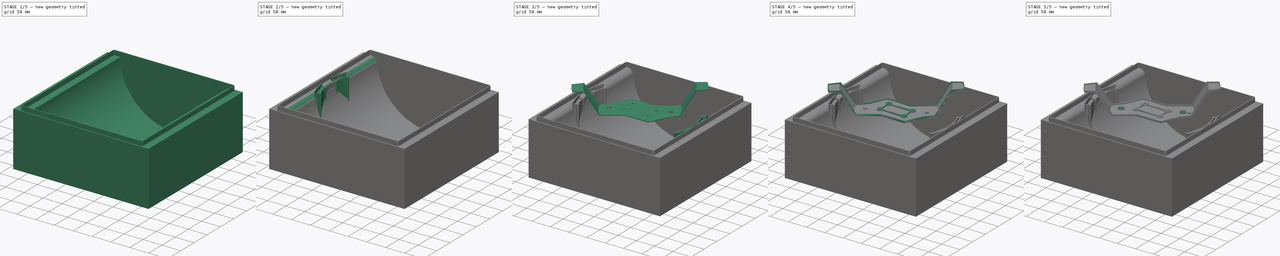
[diagram: build sequence overview — one tinted view per stage of 5, left to right]
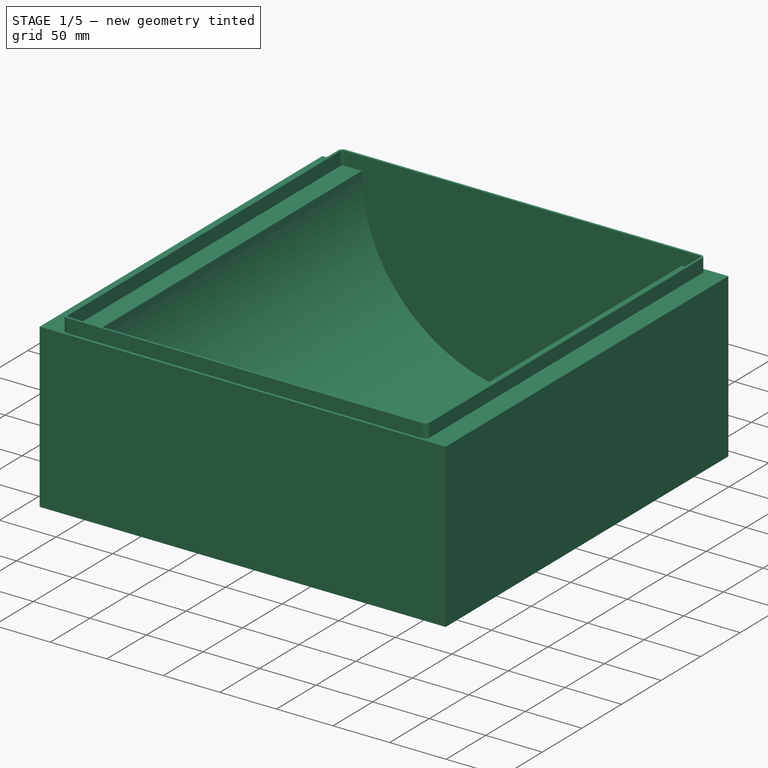
[diagram: stage 1 of 5 — iso view after this stage's code; geometry added in this stage tinted green]
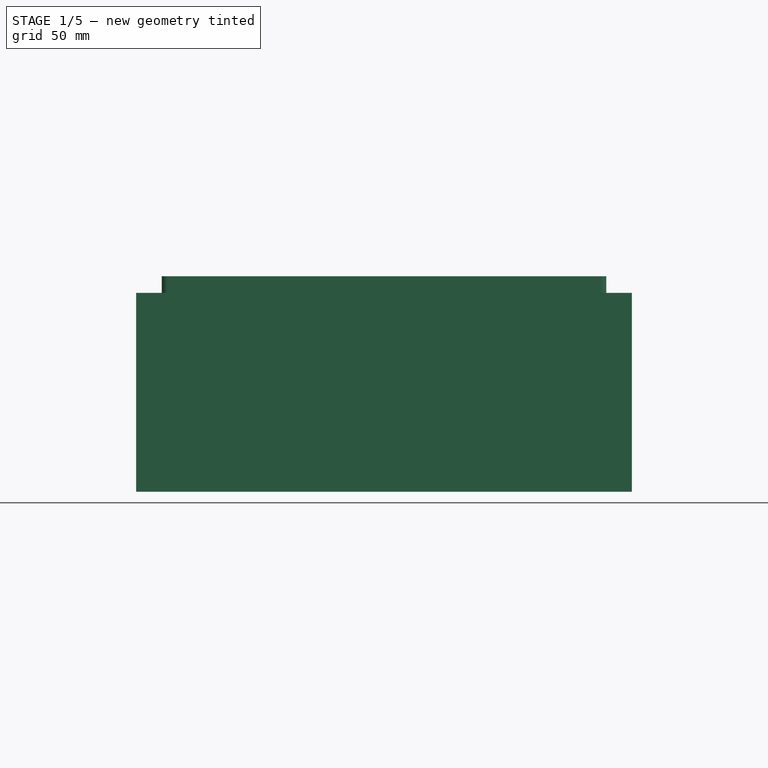
[diagram: stage 1 of 5 — front view after this stage's code; geometry added in this stage tinted green]
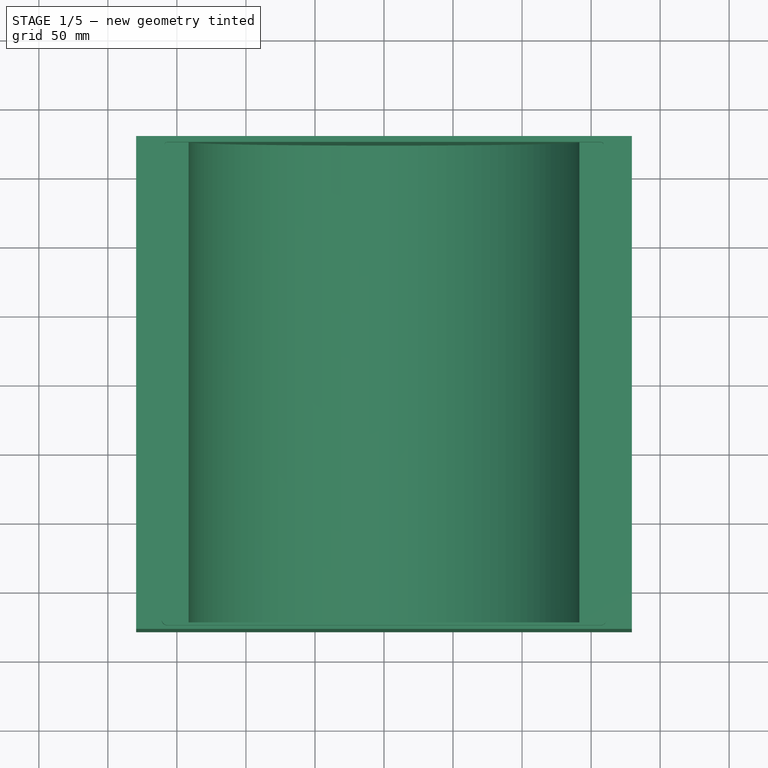
[diagram: stage 1 of 5 — top view after this stage's code; geometry added in this stage tinted green]
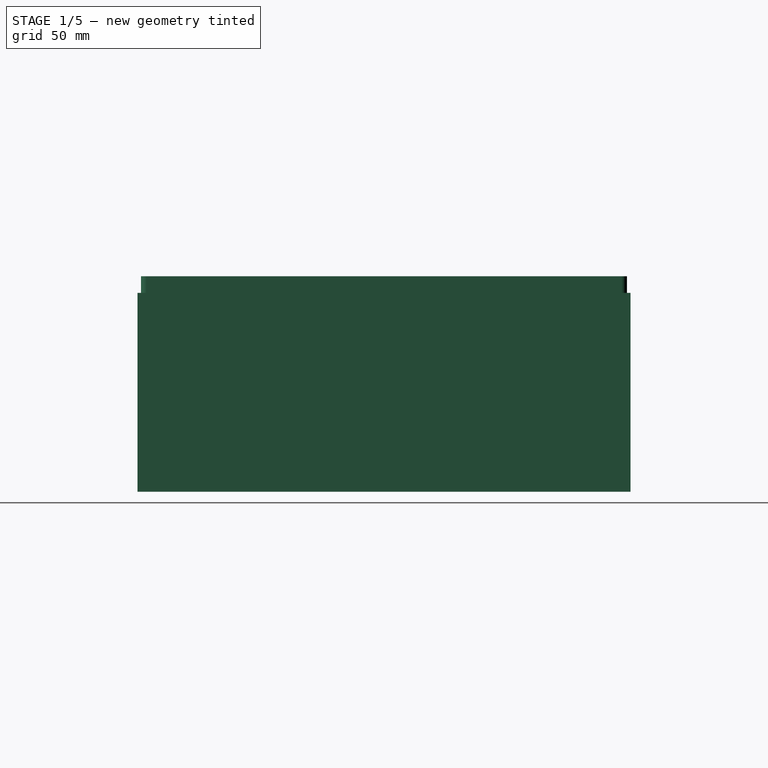
[diagram: stage 1 of 5 — right view after this stage's code; geometry added in this stage tinted green]
FCSTD DOCUMENT  (FreeCAD 1.0R39319 (Git))
Label: 30-mounting_bracket_PCBs
License: All rights reserved
LicenseURL: https://en.wikipedia.org/wiki/All_rights_reserved
objects: Sketcher::SketchObject×15, PartDesign::Pad×8, PartDesign::Pocket×4, PartDesign::Groove×2, PartDesign::Body×2, PartDesign::Mirrored×2, PartDesign::Revolution×1
note: 81 computed .brp shape members not serialized (recipe doc carries the construction recipe); baked Part::Feature solids carry a one-line shape summary decoded from their .brp

FEATURE [PartDesign::Body] Body  label="PCB_mount"
  AllowCompound = false
  Group = -> [MirroredSketch,Sketch,Revolution,Pocket,Sketch001,Pad003,Groove,Pad,Sketch002,Pad001,Sketch003,Pocket001,Sketch006,Sketch007,Sketch008,Pocket002,Sketch004,Pad004]
  Origin = -> Origin
  Placement = pos=(0,0,-45.2) rot=(0,0,1;0rad)
  Tip = -> Pad004
FEATURE [Sketcher::SketchObject] Sketch010
  ArcFitTolerance = 1e-06
  AttachmentSupport = -> [XY_Plane002]
  FullyConstrained = true
  MakeInternals = false
  MapMode = 5
  sketch-geometry (5):
    g0: LineSegment StartX=-179.5 StartY=-178.5 StartZ=0 EndX=179.5 EndY=-178.5 EndZ=0
    g1: LineSegment StartX=179.5 StartY=-178.5 StartZ=0 EndX=179.5 EndY=178.5 EndZ=0
    g2: LineSegment StartX=179.5 StartY=178.5 StartZ=0 EndX=-179.5 EndY=178.5 EndZ=0
    g3: LineSegment StartX=-179.5 StartY=178.5 StartZ=0 EndX=-179.5 EndY=-178.5 EndZ=0
    g4: GeomPoint [constr] X=0 Y=0 Z=0
  constraints (12):
    c: Coincident(g0,g1)
    c: Coincident(g1,g2)
    c: Coincident(g2,g3)
    c: Coincident(g3,g0)
    c: Horizontal(g0)
    c: Horizontal(g2)
    c: Vertical(g1)
    c: Vertical(g3)
    c: Symmetric(g2,g0,g4)
    c: Distance(g1,g3) = 359
    c: Distance(g0,g2) = 357
    c: Coincident(g4,g-1)
FEATURE [PartDesign::Pad] Pad006  label="frame_base"
  Direction = (0,0,1)
  Length = 144
  Length2 = 10
  Profile = -> Sketch010
  ReferenceAxis = -> Sketch010 [N_Axis]
  Refine = true
  Reversed = true
  Suppressed = false
  Type = 0
FEATURE [Sketcher::SketchObject] Sketch011
  ArcFitTolerance = 1e-06
  AttachmentSupport = -> [XY_Plane002]
  FullyConstrained = true
  MakeInternals = false
  MapMode = 5
  sketch-geometry (4):
    g0: LineSegment StartX=0 StartY=-174 StartZ=0 EndX=0 EndY=174 EndZ=0
    g1: LineSegment StartX=0 StartY=174 StartZ=0 EndX=-141.5 EndY=174 EndZ=0
    g2: LineSegment StartX=-141.5 StartY=174 StartZ=0 EndX=-141.5 EndY=-174 EndZ=0
    g3: LineSegment StartX=-141.5 StartY=-174 StartZ=0 EndX=0 EndY=-174 EndZ=0
  constraints (11):
    c: Coincident(g0,g1)
    c: Coincident(g1,g2)
    c: Coincident(g2,g3)
    c: Coincident(g3,g0)
    c: Vertical(g2)
    c: Horizontal(g1)
    c: Horizontal(g3)
    c: PointOnObject(g0,g-2)
    c: DistanceY(g0,g0) = 348
    c: Symmetric(g0,g0,g-1)
    c: DistanceX(g1,g1) = 141.5
FEATURE [PartDesign::Groove] Groove001  label="uitsparing_frame"
  Angle = 360
  Angle2 = 60
  Axis = (0,1,0)
  Base = (0,0,0)
  BaseFeature = -> Pad006
  Profile = -> Sketch011
  ReferenceAxis = -> Sketch011 [V_Axis]
  Refine = true
  Reversed = true
  Suppressed = false
  Type = 0
FEATURE [Sketcher::SketchObject] Sketch012
  ArcFitTolerance = 1e-06
  AttachmentSupport = -> [XY_Plane002]
  FullyConstrained = true
  MakeInternals = false
  MapMode = 5
  sketch-geometry (20):
    g0: LineSegment StartX=-159 StartY=172 StartZ=0 EndX=-159 EndY=-172 EndZ=0
    g1: LineSegment StartX=-157 StartY=-174 StartZ=0 EndX=157 EndY=-174 EndZ=0
    g2: LineSegment StartX=159 StartY=-172 StartZ=0 EndX=159 EndY=172 EndZ=0
    g3: LineSegment StartX=157 StartY=174 StartZ=0 EndX=-157 EndY=174 EndZ=0
    g4: ArcOfCircle CenterX=-157 CenterY=172 CenterZ=0 NormalX=0 NormalY=0 NormalZ=1 AngleXU=0 Radius=2 StartAngle=1.5708 EndAngle=3.14159
    g5: ArcOfCircle CenterX=-157 CenterY=-172 CenterZ=0 NormalX=0 NormalY=0 NormalZ=1 AngleXU=0 Radius=2 StartAngle=3.14159 EndAngle=4.71239
    g6: ArcOfCircle CenterX=157 CenterY=-172 CenterZ=0 NormalX=0 NormalY=0 NormalZ=1 AngleXU=0 Radius=2 StartAngle=4.71239 EndAngle=6.28319
    g7: ArcOfCircle CenterX=157 CenterY=172 CenterZ=0 NormalX=0 NormalY=0 NormalZ=1 AngleXU=0 Radius=2 StartAngle=-7.1e-15 EndAngle=1.5708
    g8: GeomPoint [constr] X=-159 Y=174 Z=0
    g9: GeomPoint [constr] X=159 Y=-174 Z=0
    g10: LineSegment StartX=-161 StartY=172 StartZ=0 EndX=-161 EndY=-172 EndZ=0
    g11: LineSegment StartX=-157 StartY=-176 StartZ=0 EndX=157 EndY=-176 EndZ=0
    g12: LineSegment StartX=161 StartY=-172 StartZ=0 EndX=161 EndY=172 EndZ=0
    g13: LineSegment StartX=157 StartY=176 StartZ=0 EndX=-157 EndY=176 EndZ=0
    g14: ArcOfCircle CenterX=-157 CenterY=172 CenterZ=0 NormalX=0 NormalY=0 NormalZ=1 AngleXU=0 Radius=4 StartAngle=1.5708 EndAngle=3.14159
    g15: ArcOfCircle CenterX=-157 CenterY=-172 CenterZ=0 NormalX=0 NormalY=0 NormalZ=1 AngleXU=0 Radius=4 StartAngle=3.14159 EndAngle=4.71239
    g16: ArcOfCircle CenterX=157 CenterY=-172 CenterZ=0 NormalX=0 NormalY=0 NormalZ=1 AngleXU=0 Radius=4 StartAngle=4.71239 EndAngle=6.28319
    g17: ArcOfCircle CenterX=157 CenterY=172 CenterZ=0 NormalX=0 NormalY=0 NormalZ=1 AngleXU=0 Radius=4 StartAngle=-1.8e-15 EndAngle=1.5708
    g18: GeomPoint [constr] X=-161 Y=176 Z=0
    g19: GeomPoint [constr] X=161 Y=-176 Z=0
  constraints (45):
    c: Tangent(g0,g4) = -1.5708
    c: Tangent(g0,g5) = -1.5708
    c: Tangent(g1,g5) = -1.5708
    c: Tangent(g1,g6) = -1.5708
    c: Tangent(g2,g6) = -1.5708
    c: Tangent(g2,g7) = -1.5708
    c: Tangent(g3,g7) = -1.5708
    c: Tangent(g3,g4) = -1.5708
    c: Vertical(g0)
    c: Vertical(g2)
    c: Horizontal(g1)
    c: Horizontal(g3)
    c: Equal(g4,g5)
    c: PointOnObject(g8,g0)
    c: PointOnObject(g8,g3)
    c: PointOnObject(g9,g1)
    c: PointOnObject(g9,g2)
    c: Distance(g0,g2) = 318
    c: Distance(g1,g3) = 348
    c: Radius(g5) = 2
    c: Symmetric(g7,g6,g-1)
    c: Symmetric(g6,g5,g-2)
    c: Tangent(g10,g14) = -1.5708
    c: Tangent(g10,g15) = -1.5708
    c: Tangent(g11,g15) = -1.5708
    c: Tangent(g11,g16) = -1.5708
    c: Tangent(g12,g16) = -1.5708
    c: Tangent(g12,g17) = -1.5708
    c: Tangent(g13,g17) = -1.5708
    c: Tangent(g13,g14) = -1.5708
    c: Vertical(g10)
    c: Vertical(g12)
    c: Horizontal(g11)
    c: Horizontal(g13)
    c: Equal(g14,g15)
    c: Equal(g15,g16)
    c: Equal(g16,g17)
    c: PointOnObject(g18,g10)
    c: PointOnObject(g18,g13)
    c: PointOnObject(g19,g11)
    c: PointOnObject(g19,g12)
    c: Horizontal(g12,g2)
    c: DistanceX(g2,g12) = 2
    c: Vertical(g11,g1)
    c: Coincident(g4,g14)
FEATURE [PartDesign::Pad] Pad007  label="front_ridge"
  BaseFeature = -> Groove001
  Direction = (0,0,1)
  Length = 12
  Length2 = 10
  Profile = -> Sketch012
  ReferenceAxis = -> Sketch012 [N_Axis]
  Refine = true
  Suppressed = false
  Type = 0
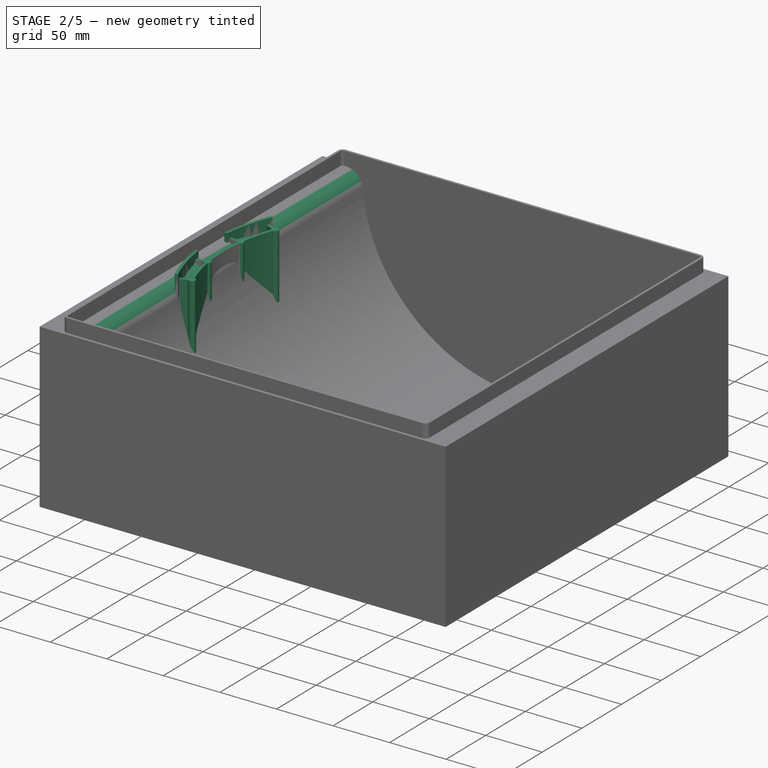
[diagram: stage 2 of 5 — iso view after this stage's code; geometry added in this stage tinted green]
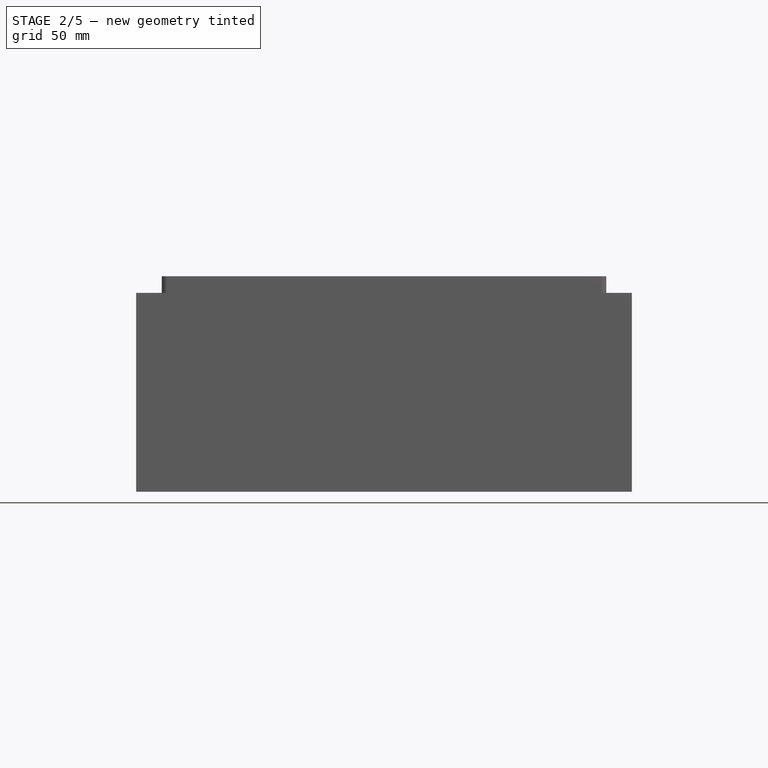
[diagram: stage 2 of 5 — front view after this stage's code; geometry added in this stage tinted green]
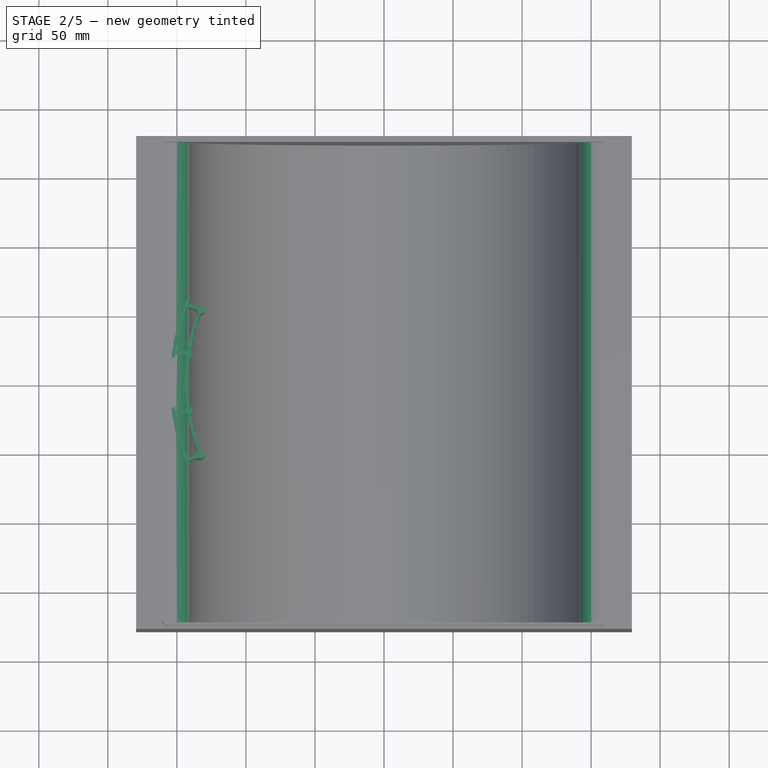
[diagram: stage 2 of 5 — top view after this stage's code; geometry added in this stage tinted green]
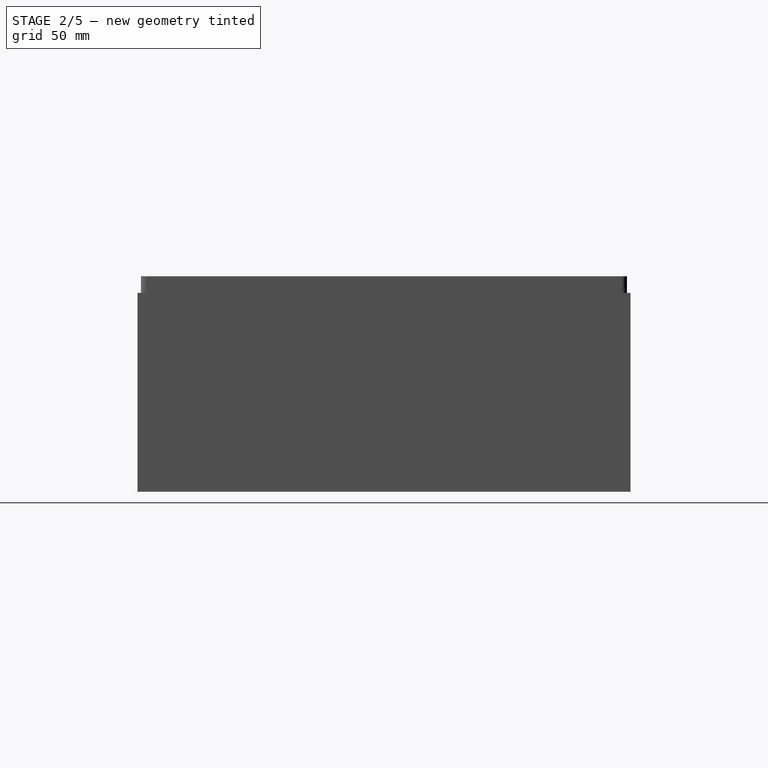
[diagram: stage 2 of 5 — right view after this stage's code; geometry added in this stage tinted green]
FEATURE [Sketcher::SketchObject] Sketch013
  ArcFitTolerance = 1e-06
  AttachmentSupport = -> [XZ_Plane002]
  ExternalGeometry = -> [Pad007]
  FullyConstrained = true
  MakeInternals = false
  MapMode = 5
  Placement = pos=(0,0,0) rot=(1,0,0;1.5708rad)
  sketch-geometry (4):
    g0: ArcOfCircle CenterX=-155.779 CenterY=-15 CenterZ=0 NormalX=0 NormalY=0 NormalZ=1 AngleXU=0 Radius=15 StartAngle=0.095994 EndAngle=1.5708
    g1: LineSegment StartX=-155.779 StartY=3.91e-14 StartZ=0 EndX=-155.779 EndY=10 EndZ=0
    g2: LineSegment StartX=-155.779 StartY=10 StartZ=0 EndX=-140.849 EndY=10 EndZ=0
    g3: LineSegment StartX=-140.849 StartY=10 StartZ=0 EndX=-140.849 EndY=-13.5623 EndZ=0
  constraints (11):
    c: Tangent(g0,g-3) = 1.5708
    c: Radius(g0) = 15
    c: Tangent(g0,g-4) = -1.5708
    c: Coincident(g0,g1)
    c: Coincident(g1,g2)
    c: Horizontal(g2)
    c: Coincident(g2,g3)
    c: Coincident(g3,g0)
    c: Vertical(g3)
    c: Vertical(g1)
    c: DistanceY(g1,g1) = 10
FEATURE [PartDesign::Pocket] Pocket003  label="frame_side_rounding"
  BaseFeature = -> Pad007
  Direction = (0,1,-2e-16)
  Length = 348
  Length2 = 5
  Midplane = true
  Profile = -> Sketch013
  ReferenceAxis = -> Sketch013 [N_Axis]
  Refine = true
  Suppressed = false
  Type = 0
FEATURE [PartDesign::Mirrored] Mirrored002
  BaseFeature = -> Pocket003
  MirrorPlane = -> Sketch013 [V_Axis]
  Originals = -> [Pocket003]
  Refine = true
  Suppressed = false
  TransformMode = 0
FEATURE [Sketcher::SketchObject] Sketch014
  ArcFitTolerance = 1e-06
  AttachmentOffset = pos=(0,0,2) rot=(0,0,1;0rad)
  AttachmentSupport = -> [XY_Plane002]
  FullyConstrained = true
  MakeInternals = false
  MapMode = 5
  Placement = pos=(0,0,2) rot=(0,0,1;0rad)
  sketch-geometry (43):
    g0: Circle [constr] CenterX=0 CenterY=0 CenterZ=0 NormalX=0 NormalY=0 NormalZ=1 AngleXU=0 Radius=143
    g1: LineSegment [constr] StartX=-141.523 StartY=20.5 StartZ=0 EndX=-141.523 EndY=-20.5 EndZ=0
    g2: LineSegment [constr] StartX=-133.014 StartY=52.5 StartZ=0 EndX=-133.014 EndY=-52.5 EndZ=0
    g3: Circle [constr] CenterX=-133.014 CenterY=52.5 CenterZ=0 NormalX=0 NormalY=0 NormalZ=1 AngleXU=0 Radius=3
    g4: Circle [constr] CenterX=-141.523 CenterY=20.5 CenterZ=0 NormalX=0 NormalY=0 NormalZ=1 AngleXU=0 Radius=3
    g5: Circle [constr] CenterX=-141.523 CenterY=-20.5 CenterZ=0 NormalX=0 NormalY=0 NormalZ=1 AngleXU=0 Radius=3
    g6: Circle [constr] CenterX=-133.014 CenterY=-52.5 CenterZ=0 NormalX=0 NormalY=0 NormalZ=1 AngleXU=0 Radius=3
    g7: ArcOfCircle CenterX=0 CenterY=0 CenterZ=0 NormalX=0 NormalY=0 NormalZ=1 AngleXU=0 Radius=144.25 StartAngle=3.01673 EndAngle=3.26646
    g8: ArcOfCircle CenterX=0 CenterY=0 CenterZ=0 NormalX=0 NormalY=0 NormalZ=1 AngleXU=0 Radius=141.75 StartAngle=3.0169 EndAngle=3.26629
    g9: GeomPoint X=-144.25 Y=0 Z=0
    g10: GeomPoint X=-141.75 Y=0 Z=0
    g11: GeomPoint X=-143 Y=0 Z=0
    g12: ArcOfCircle CenterX=0 CenterY=0 CenterZ=0 NormalX=0 NormalY=0 NormalZ=1 AngleXU=0 Radius=144.25 StartAngle=3.30443 EndAngle=3.49853
    g13: ArcOfCircle CenterX=0 CenterY=0 CenterZ=0 NormalX=0 NormalY=0 NormalZ=1 AngleXU=0 Radius=141.75 StartAngle=3.3046 EndAngle=3.49836
    g14: ArcOfCircle CenterX=0 CenterY=0 CenterZ=0 NormalX=0 NormalY=0 NormalZ=1 AngleXU=0 Radius=141.75 StartAngle=2.78482 EndAngle=2.97859
    g15: ArcOfCircle CenterX=0 CenterY=0 CenterZ=0 NormalX=0 NormalY=0 NormalZ=1 AngleXU=0 Radius=144.25 StartAngle=2.78466 EndAngle=2.97875
    g16: ArcOfCircle CenterX=-141.523 CenterY=20.5 CenterZ=0 NormalX=0 NormalY=0 NormalZ=1 AngleXU=0 Radius=3 StartAngle=5.00787 EndAngle=7.2708
    g17: ArcOfCircle CenterX=-141.523 CenterY=-20.5 CenterZ=0 NormalX=0 NormalY=0 NormalZ=1 AngleXU=0 Radius=3 StartAngle=5.29557 EndAngle=7.5585
    g18: LineSegment StartX=-135.092 StartY=-54.6639 StartZ=0 EndX=-141.392 EndY=-57.1505 EndZ=0
    g19: LineSegment StartX=-141.392 StartY=-57.1505 StartZ=0 EndX=-142.31 EndY=-54.8251 EndZ=0
    g20: LineSegment StartX=-142.31 StartY=-54.8251 StartZ=0 EndX=-136.01 EndY=-52.3385 EndZ=0
    g21: LineSegment [constr] StartX=-141.851 StartY=-55.9878 StartZ=0 EndX=0 EndY=0 EndZ=0
    g22: LineSegment [constr] StartX=0 StartY=0 StartZ=0 EndX=-150.925 EndY=-21.8619 EndZ=0
    g23: LineSegment StartX=-144.401 StartY=-19.6539 StartZ=0 EndX=-151.104 EndY=-20.6248 EndZ=0
    g24: LineSegment StartX=-151.104 StartY=-20.6248 StartZ=0 EndX=-150.746 EndY=-23.099 EndZ=0
    g25: LineSegment StartX=-150.746 StartY=-23.099 StartZ=0 EndX=-144.043 EndY=-22.128 EndZ=0
    g26: LineSegment [constr] StartX=0 StartY=0 StartZ=0 EndX=-150.925 EndY=21.8619 EndZ=0
    g27: LineSegment StartX=-144.043 StartY=22.128 StartZ=0 EndX=-150.746 EndY=23.099 EndZ=0
    g28: LineSegment StartX=-150.746 StartY=23.099 StartZ=0 EndX=-151.104 EndY=20.6248 EndZ=0
    g29: LineSegment StartX=-151.104 StartY=20.6248 StartZ=0 EndX=-144.401 EndY=19.6539 EndZ=0
    g30: LineSegment [constr] StartX=0 StartY=0 StartZ=0 EndX=-141.851 EndY=55.9878 EndZ=0
    g31: LineSegment StartX=-135.092 StartY=54.6639 StartZ=0 EndX=-141.392 EndY=57.1505 EndZ=0
    g32: LineSegment StartX=-141.392 StartY=57.1505 StartZ=0 EndX=-142.31 EndY=54.8251 EndZ=0
    g33: LineSegment StartX=-142.31 StartY=54.8251 StartZ=0 EndX=-136.01 EndY=52.3385 EndZ=0
    g34: Circle [constr] CenterX=0 CenterY=0 CenterZ=0 NormalX=0 NormalY=0 NormalZ=1 AngleXU=0 Radius=152.5
    g35: ArcOfCircle CenterX=-133.014 CenterY=-52.5 CenterZ=0 NormalX=0 NormalY=0 NormalZ=1 AngleXU=0 Radius=3 StartAngle=3.94729 EndAngle=7.79057
    g36: ArcOfCircle CenterX=-133.014 CenterY=-52.5 CenterZ=0 NormalX=0 NormalY=0 NormalZ=1 AngleXU=0 Radius=3 StartAngle=2.36698 EndAngle=3.08774
    g37: ArcOfCircle CenterX=-141.523 CenterY=-20.5 CenterZ=0 NormalX=0 NormalY=0 NormalZ=1 AngleXU=0 Radius=3 StartAngle=3.71522 EndAngle=4.43598
    g38: ArcOfCircle CenterX=-141.523 CenterY=20.5 CenterZ=0 NormalX=0 NormalY=0 NormalZ=1 AngleXU=0 Radius=3 StartAngle=3.42752 EndAngle=4.14828
    g39: ArcOfCircle CenterX=-141.523 CenterY=20.5 CenterZ=0 NormalX=0 NormalY=0 NormalZ=1 AngleXU=0 Radius=3 StartAngle=1.8472 EndAngle=2.56796
    g40: ArcOfCircle CenterX=-133.014 CenterY=52.5 CenterZ=0 NormalX=0 NormalY=0 NormalZ=1 AngleXU=0 Radius=3 StartAngle=4.7758 EndAngle=8.61908
    g41: ArcOfCircle CenterX=-133.014 CenterY=52.5 CenterZ=0 NormalX=0 NormalY=0 NormalZ=1 AngleXU=0 Radius=3 StartAngle=3.19544 EndAngle=3.9162
    g42: ArcOfCircle CenterX=-141.523 CenterY=-20.5 CenterZ=0 NormalX=0 NormalY=0 NormalZ=1 AngleXU=0 Radius=3 StartAngle=2.13491 EndAngle=2.85567
  constraints (120):
    c: Diameter(g0) = 286
    c: Coincident(g0,g-1)
    c: Distance(g1) = 41
    c: Vertical(g1)
    c: PointOnObject(g1,g0)
    c: PointOnObject(g1,g0)
    c: Distance(g2) = 105
    c: PointOnObject(g2,g0)
    c: PointOnObject(g2,g0)
    c: Vertical(g2)
    c: Diameter(g3) = 6
    c: Coincident(g3,g2)
    c: Coincident(g4,g1)
    c: Coincident(g5,g1)
    c: Equal(g3,g4)
    c: Equal(g4,g5)
    c: Equal(g5,g6)
    c: Coincident(g7,g0)
    c: PointOnObject(g7,g4)
    c: PointOnObject(g7,g5)
    c: Coincident(g8,g0)
    c: PointOnObject(g8,g4)
    c: PointOnObject(g8,g5)
    c: PointOnObject(g9,g7)
    c: PointOnObject(g10,g8)
    c: PointOnObject(g11,g0)
    c: Horizontal(g9,g10)
    c: PointOnObject(g10,g-1)
    c: Symmetric(g9,g10,g11)
    c: DistanceX(g9,g10) = 2.5
    c: PointOnObject(g12,g6)
    c: PointOnObject(g13,g6)
    c: PointOnObject(g14,g3)
    c: Coincident(g0,g12)
    c: Equal(g12,g7)
    c: Equal(g14,g8)
    c: Coincident(g0,g14)
    c: Coincident(g13,g0)
    c: Equal(g15,g7)
    c: Coincident(g0,g15)
    c: Coincident(g17,g8)
    c: Coincident(g17,g13)
    c: Equal(g13,g8)
    c: Coincident(g16,g8)
    c: Coincident(g16,g14)
    c: Coincident(g16,g1)
    c: PointOnObject(g18,g6)
    c: Coincident(g19,g18)
    c: Coincident(g20,g19)
    c: PointOnObject(g20,g6)
    c: Symmetric(g19,g19,g21)
    c: Coincident(g21,g0)
    c: Parallel(g18,g20)
    c: Perpendicular(g19,g21)
    c: Perpendicular(g20,g19)
    c: PointOnObject(g2,g21)
    c: Distance(g19,g19) = 2.5
    c: Coincident(g22,g0)
    c: Coincident(g23,g24)
    c: Coincident(g24,g25)
    c: PointOnObject(g25,g5)
    c: Parallel(g23,g25)
    c: Parallel(g25,g22)
    c: Perpendicular(g24,g22)
    c: PointOnObject(g17,g22)
    c: Symmetric(g23,g24,g22)
    c: Coincident(g26,g0)
    c: PointOnObject(g1,g26)
    c: PointOnObject(g27,g4)
    c: Coincident(g27,g28)
    c: Coincident(g28,g29)
    c: Perpendicular(g28,g26)
    c: Parallel(g27,g26)
    c: Parallel(g26,g29)
    c: Coincident(g30,g0)
    c: PointOnObject(g2,g30)
    c: Coincident(g31,g32)
    c: Coincident(g32,g33)
    c: PointOnObject(g33,g3)
    c: Parallel(g33,g30)
    c: Parallel(g30,g31)
    c: Perpendicular(g30,g32)
    c: Symmetric(g31,g32,g30)
    c: Equal(g32,g28)
    c: Equal(g28,g24)
    c: Equal(g24,g19)
    c: Symmetric(g28,g27,g26)
    c: Diameter(g34) = 305
    c: Coincident(g34,g0)
    c: PointOnObject(g30,g34)
    c: PointOnObject(g26,g34)
    c: PointOnObject(g22,g34)
    c: PointOnObject(g21,g34)
    c: Coincident(g35,g2)
    c: Coincident(g35,g13)
    c: Coincident(g35,g18)
    c: Coincident(g36,g2)
    c: Coincident(g36,g12)
    c: Coincident(g36,g20)
    c: Coincident(g1,g17)
    c: Coincident(g37,g1)
    c: Coincident(g37,g25)
    c: Coincident(g37,g12)
    c: PointOnObject(g15,g4)
    c: PointOnObject(g15,g3)
    c: Coincident(g38,g1)
    c: Coincident(g38,g29)
    c: Coincident(g38,g7)
    c: Equal(g39,g4)
    c: Coincident(g39,g27)
    c: Coincident(g39,g15)
    c: Coincident(g40,g2)
    c: Coincident(g40,g31)
    c: Coincident(g40,g14)
    c: Coincident(g15,g41)
    c: Coincident(g33,g41)
    c: Equal(g41,g3)
    c: Coincident(g42,g1)
    c: Coincident(g42,g7)
    c: Coincident(g42,g23)
FEATURE [PartDesign::Pad] Pad008  label="glass_support"
  BaseFeature = -> Mirrored002
  Direction = (0,0,1)
  Length = 10
  Length2 = 10
  Profile = -> Sketch014
  ReferenceAxis = -> Sketch014 [N_Axis]
  Refine = true
  Reversed = true
  Suppressed = false
  Type = 3
  UpToFace = -> Mirrored002 [Face5]
FEATURE [Sketcher::SketchObject] Sketch015
  ArcFitTolerance = 1e-06
  AttachmentOffset = pos=(0,0,7) rot=(0,0,1;0rad)
  AttachmentSupport = -> [XY_Plane002]
  FullyConstrained = true
  MakeInternals = false
  MapMode = 5
  Placement = pos=(0,0,7) rot=(0,0,1;0rad)
  sketch-geometry (12):
    g0: ArcOfCircle CenterX=0 CenterY=-8.53e-14 CenterZ=0 NormalX=0 NormalY=0 NormalZ=1 AngleXU=0 Radius=152.5 StartAngle=2.73722 EndAngle=3.02328
    g1: ArcOfCircle CenterX=0 CenterY=-8.53e-14 CenterZ=0 NormalX=0 NormalY=0 NormalZ=1 AngleXU=0 Radius=152.5 StartAngle=3.2599 EndAngle=3.54597
    g2: ArcOfCircle CenterX=0 CenterY=-8.53e-14 CenterZ=0 NormalX=0 NormalY=0 NormalZ=1 AngleXU=0 Radius=155 StartAngle=2.73722 EndAngle=3.02328
    g3: ArcOfCircle CenterX=0 CenterY=-8.53e-14 CenterZ=0 NormalX=0 NormalY=0 NormalZ=1 AngleXU=0 Radius=155 StartAngle=3.2599 EndAngle=3.54597
    g4: LineSegment [constr] StartX=-142.499 StartY=60.9836 StartZ=0 EndX=0 EndY=-8.53e-14 EndZ=0
    g5: LineSegment [constr] StartX=0 StartY=-8.53e-14 StartZ=0 EndX=-153.917 EndY=18.2951 EndZ=0
    g6: LineSegment [constr] StartX=-153.917 StartY=-18.2951 StartZ=0 EndX=0 EndY=-8.53e-14 EndZ=0
    g7: LineSegment [constr] StartX=0 StartY=-8.53e-14 StartZ=0 EndX=-142.499 EndY=-60.9836 EndZ=0
    g8: LineSegment StartX=-153.917 StartY=-18.2951 StartZ=0 EndX=-151.434 EndY=-18 EndZ=0
    g9: LineSegment StartX=-140.201 StartY=-60 StartZ=0 EndX=-142.499 EndY=-60.9836 EndZ=0
    g10: LineSegment StartX=-153.917 StartY=18.2951 StartZ=0 EndX=-151.434 EndY=18 EndZ=0
    g11: LineSegment StartX=-142.499 StartY=60.9836 StartZ=0 EndX=-140.201 EndY=60 EndZ=0
  constraints (31):
    c: Diameter(g0) = 305
    c: Coincident(g1,g0)
    c: Coincident(g2,g0)
    c: Coincident(g3,g0)
    c: Coincident(g4,g2)
    c: Coincident(g4,g0)
    c: Coincident(g5,g0)
    c: Coincident(g5,g2)
    c: PointOnObject(g0,g5)
    c: PointOnObject(g0,g4)
    c: Coincident(g6,g3)
    c: Coincident(g6,g0)
    c: Coincident(g7,g0)
    c: Coincident(g7,g3)
    c: PointOnObject(g1,g6)
    c: PointOnObject(g1,g7)
    c: Coincident(g8,g3)
    c: Coincident(g8,g1)
    c: Coincident(g9,g1)
    c: Coincident(g9,g3)
    c: Coincident(g10,g2)
    c: Coincident(g10,g0)
    c: Coincident(g11,g2)
    c: Coincident(g11,g0)
    c: Distance(g11,g11) = 2.5
    c: Equal(g11,g8)
    c: Symmetric(g0,g1,g-1)
    c: DistanceY(g1,g0) = 36
    c: DistanceY(g1,g0) = 120
    c: Symmetric(g0,g1,g-1)
    c: PointOnObject(g0,g-2)
FEATURE [PartDesign::Pad] Pad009  label="glass_edge"
  BaseFeature = -> Pad008
  Direction = (0,0,1)
  Length = 10
  Length2 = 10
  Profile = -> Sketch015
  ReferenceAxis = -> Sketch015 [N_Axis]
  Reversed = true
  Suppressed = false
  Type = 3
  UpToFace = -> Pad008 [Face60]
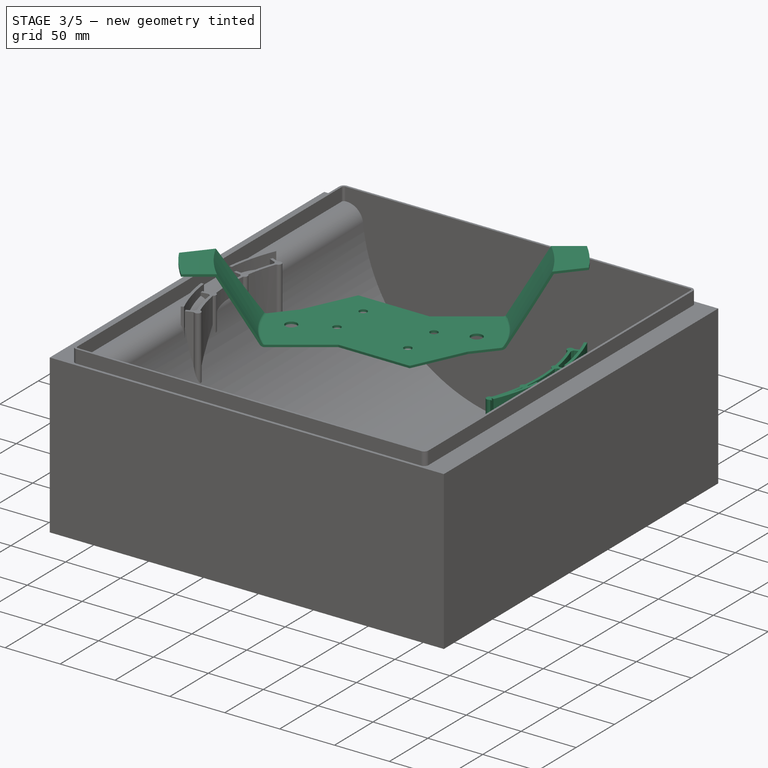
[diagram: stage 3 of 5 — iso view after this stage's code; geometry added in this stage tinted green]
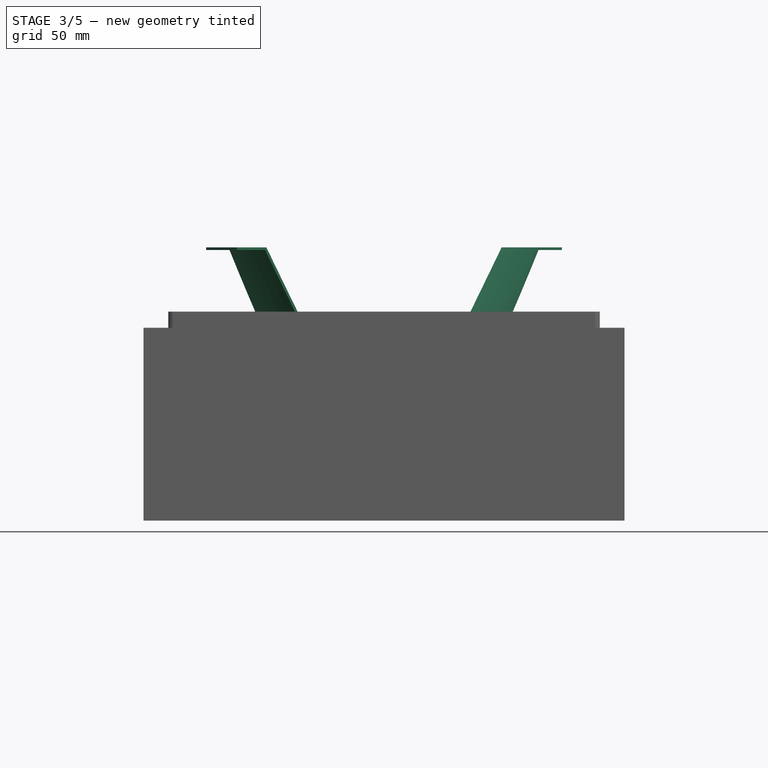
[diagram: stage 3 of 5 — front view after this stage's code; geometry added in this stage tinted green]
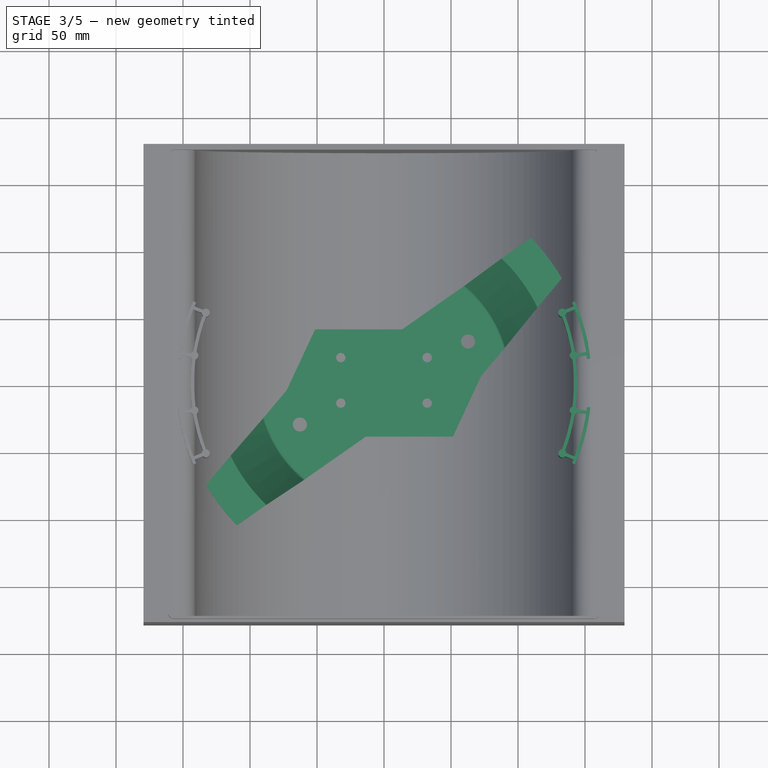
[diagram: stage 3 of 5 — top view after this stage's code; geometry added in this stage tinted green]
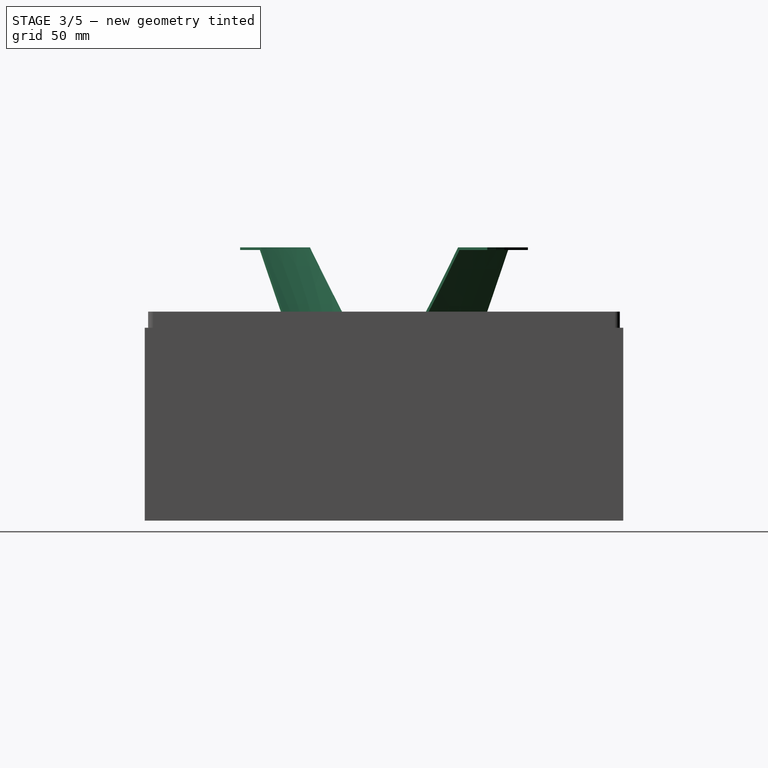
[diagram: stage 3 of 5 — right view after this stage's code; geometry added in this stage tinted green]
FEATURE [Sketcher::SketchObject] MirroredSketch  label="Cut_out_bracket_shape"
  ArcFitTolerance = 1e-06
  AttacherType = Attacher::AttachEngine3D
  AttachmentSupport = -> [XY_Plane]
  FullyConstrained = true
  MakeInternals = false
  MapMode = 2
  sketch-geometry (29):
    g0: LineSegment StartX=58.6287 StartY=71.5467 StartZ=0 EndX=13.5753 EndY=40 EndZ=0
    g1: LineSegment StartX=13.5753 StartY=40 StartZ=0 EndX=-51.4247 EndY=40 EndZ=0
    g2: LineSegment StartX=-51.4247 StartY=40 StartZ=0 EndX=-72.5556 EndY=-5.31539 EndZ=0
    g3: LineSegment StartX=-72.5556 StartY=-5.31539 StartZ=0 EndX=-89.0614 EndY=-24.9862 EndZ=0
    g4: ArcOfCircle [constr] CenterX=0 CenterY=0 CenterZ=0 NormalX=0 NormalY=0 NormalZ=1 AngleXU=0 Radius=92.5 StartAngle=3.41511 EndAngle=4.0259
    g5: LineSegment StartX=-58.6287 StartY=-71.5467 StartZ=0 EndX=-13.5753 EndY=-40 EndZ=0
    g6: LineSegment StartX=-13.5753 StartY=-40 StartZ=0 EndX=51.4247 EndY=-40 EndZ=0
    g7: LineSegment StartX=51.4247 StartY=-40 StartZ=0 EndX=72.5556 EndY=5.31539 EndZ=0
    g8: LineSegment StartX=72.5556 StartY=5.31539 StartZ=0 EndX=89.0614 EndY=24.9862 EndZ=0
    g9: ArcOfCircle [constr] CenterX=0 CenterY=0 CenterZ=0 NormalX=0 NormalY=0 NormalZ=1 AngleXU=0 Radius=92.5 StartAngle=0.273519 EndAngle=0.88431
    g10: LineSegment [constr] StartX=-32.25 StartY=-15 StartZ=0 EndX=32.25 EndY=-15 EndZ=0
    g11: LineSegment [constr] StartX=32.25 StartY=-15 StartZ=0 EndX=32.25 EndY=19 EndZ=0
    g12: LineSegment [constr] StartX=32.25 StartY=19 StartZ=0 EndX=-32.25 EndY=19 EndZ=0
    g13: LineSegment [constr] StartX=-32.25 StartY=19 StartZ=0 EndX=-32.25 EndY=-15 EndZ=0
    g14: GeomPoint [constr] X=0 Y=0 Z=0
    g15: Circle CenterX=32.25 CenterY=19 CenterZ=0 NormalX=0 NormalY=0 NormalZ=1 AngleXU=0 Radius=3.5
    g16: Circle CenterX=-32.25 CenterY=19 CenterZ=0 NormalX=0 NormalY=0 NormalZ=1 AngleXU=0 Radius=3.5
    g17: Circle CenterX=32.25 CenterY=-15 CenterZ=0 NormalX=0 NormalY=0 NormalZ=1 AngleXU=0 Radius=3.5
    g18: Circle CenterX=-32.25 CenterY=-15 CenterZ=0 NormalX=0 NormalY=0 NormalZ=1 AngleXU=0 Radius=3.5
    g19: Circle CenterX=62.7675 CenterY=30.9877 CenterZ=0 NormalX=0 NormalY=0 NormalZ=1 AngleXU=0 Radius=5.25
    g20: Circle CenterX=-62.7675 CenterY=-30.9877 CenterZ=0 NormalX=0 NormalY=0 NormalZ=1 AngleXU=0 Radius=5.25
    g21: LineSegment [constr] StartX=-62.7675 StartY=-30.9877 StartZ=0 EndX=-81.1526 EndY=-15.5608 EndZ=0
    g22: LineSegment [constr] StartX=62.7675 StartY=30.9877 StartZ=0 EndX=-62.7675 EndY=-30.9877 EndZ=0
    g23: LineSegment StartX=-58.6287 StartY=-71.5467 StartZ=0 EndX=-140.544 EndY=-128.904 EndZ=0
    g24: LineSegment StartX=-89.0614 StartY=-24.9862 StartZ=0 EndX=-153.34 EndY=-101.591 EndZ=0
    g25: LineSegment StartX=58.6287 StartY=71.5467 StartZ=0 EndX=134.951 EndY=124.988 EndZ=0
    g26: LineSegment StartX=89.0614 StartY=24.9862 StartZ=0 EndX=157.869 EndY=106.988 EndZ=0
    g27: ArcOfCircle CenterX=0 CenterY=0 CenterZ=0 NormalX=0 NormalY=0 NormalZ=1 AngleXU=0 Radius=190.706 StartAngle=3.88382 EndAngle=6.87879
    g28: ArcOfCircle CenterX=0 CenterY=0 CenterZ=0 NormalX=0 NormalY=0 NormalZ=1 AngleXU=0 Radius=183.94 StartAngle=0.747089 EndAngle=3.72672
  constraints (73):
    c: Coincident(g0,g1)
    c: Horizontal(g1)
    c: Coincident(g1,g2)
    c: Coincident(g2,g3)
    c: Coincident(g4,g5)
    c: Coincident(g5,g6)
    c: Horizontal(g6)
    c: Coincident(g6,g7)
    c: Coincident(g7,g8)
    c: Coincident(g9,g-1)
    c: Coincident(g9,g0)
    c: Coincident(g9,g8)
    c: Radius(g9) = 92.5
    c: Equal(g9,g4)
    c: Coincident(g4,g9)
    c: Angle(g0,g1) = 2.53073
    c: Angle(g5,g6) = 2.53073
    c: Angle(g2,g1) = 2.00713
    c: Angle(g7,g6) = 2.00713
    c: Angle(g2,g3) = 2.87979
    c: Coincident(g3,g4)
    c: Angle(g7,g8) = 2.87979
    c: DistanceX(g1,g1) = 65
    c: Equal(g1,g6)
    c: Distance(g0,g0) = 55
    c: Equal(g5,g0)
    c: Distance(g7,g7) = 50
    c: Equal(g7,g2)
    c: DistanceY(g5,g1) = 80
    c: DistanceY(g0) = 40
    c: Coincident(g10,g11)
    c: Coincident(g11,g12)
    c: Coincident(g12,g13)
    c: Coincident(g13,g10)
    c: Horizontal(g10)
    c: Vertical(g11)
    c: Vertical(g13)
    c: Distance(g11,g13) = 64.5
    c: Distance(g10,g12) = 34
    c: Coincident(g14,g4)
    c: Coincident(g15,g11)
    c: Coincident(g16,g12)
    c: Coincident(g17,g10)
    c: Coincident(g18,g10)
    c: Equal(g16,g15)
    c: Equal(g15,g17)
    c: Equal(g17,g18)
    c: Diameter(g16) = 7
    c: Diameter(g19) = 10.5
    c: Equal(g20,g19)
    c: PointOnObject(g21,g3)
    c: Perpendicular(g3,g21)
    c: Distance(g21,g21) = 24
    c: Coincident(g20,g21)
    c: Coincident(g22,g19)
    c: Coincident(g22,g20)
    c: Distance(g22,g22) = 140
    c: Coincident(g23,g4)
    c: Distance(g24) = 100
    c: Tangent(g24,g3) = -1.5708
    c: Tangent(g25,g0) = 1.5708
    c: Tangent(g26,g8) = -1.5708
    c: Equal(g23,g24)
    c: Coincident(g26,g27)
    c: Coincident(g27,g4)
    c: Coincident(g28,g4)
    c: Coincident(g28,g24)
    c: Coincident(g28,g25)
    c: Coincident(g23,g27)
    c: Parallel(g5,g23)
    c: DistanceY(g12,g1) = 21
    c: Symmetric(g12,g11,g-2)
    c: Symmetric(g19,g20,g4)
FEATURE [Sketcher::SketchObject] Sketch  label="bracket_cross_section"
  ArcFitTolerance = 1e-06
  AttachmentSupport = -> [XZ_Plane]
  FullyConstrained = true
  MakeInternals = false
  MapMode = 5
  Placement = pos=(0,0,0) rot=(1,0,0;1.5708rad)
  sketch-geometry (12):
    g0: LineSegment StartX=0 StartY=0 StartZ=0 EndX=92.5 EndY=0 EndZ=0
    g1: LineSegment StartX=95.9641 StartY=2 StartZ=0 EndX=128.296 EndY=58 EndZ=0
    g2: LineSegment StartX=128.296 StartY=58 StartZ=0 EndX=153.5 EndY=58 EndZ=0
    g3: LineSegment StartX=153.5 StartY=58 StartZ=0 EndX=153.5 EndY=60 EndZ=0
    g4: LineSegment StartX=153.5 StartY=60 StartZ=0 EndX=127.141 EndY=60 EndZ=0
    g5: LineSegment StartX=127.141 StartY=60 StartZ=0 EndX=94.2321 EndY=3 EndZ=0
    g6: LineSegment StartX=92.5 StartY=2 StartZ=0 EndX=0 EndY=2 EndZ=0
    g7: LineSegment StartX=0 StartY=2 StartZ=0 EndX=0 EndY=0 EndZ=0
    g8: ArcOfCircle CenterX=92.5 CenterY=4 CenterZ=0 NormalX=0 NormalY=0 NormalZ=1 AngleXU=0 Radius=4 StartAngle=4.71239 EndAngle=5.75959
    g9: GeomPoint [constr] X=94.8094 Y=0 Z=0
    g10: ArcOfCircle CenterX=92.5 CenterY=4 CenterZ=0 NormalX=0 NormalY=0 NormalZ=1 AngleXU=0 Radius=2 StartAngle=4.71239 EndAngle=5.75959
    g11: GeomPoint [constr] X=93.6547 Y=2 Z=0
  constraints (30):
    c: Coincident(g-1,g0)
    c: PointOnObject(g9,g-1)
    c: Coincident(g1,g2)
    c: Horizontal(g2)
    c: Coincident(g2,g3)
    c: Coincident(g3,g4)
    c: Horizontal(g4)
    c: Coincident(g4,g5)
    c: Horizontal(g6)
    c: Coincident(g6,g7)
    c: Coincident(g7,g0)
    c: Parallel(g5,g1)
    c: DistanceY(g7,g7) = 2
    c: PointOnObject(g9,g1)
    c: PointOnObject(g9,g0)
    c: Tangent(g1,g8) = -1.5708
    c: Tangent(g0,g8) = -1.5708
    c: Angle(g0,g1) = 1.0472
    c: DistanceY(g3,g3) = 2
    c: DistanceX(g-1,g2) = 153.5
    c: Vertical(g3)
    c: Radius(g8) = 4
    c: DistanceY(g1) = 58
    c: DistanceX(g0) = 92.5
    c: PointOnObject(g11,g6)
    c: PointOnObject(g11,g5)
    c: Tangent(g6,g10) = 1.5708
    c: Tangent(g5,g10) = 1.5708
    c: Coincident(g10,g8)
    c: Vertical(g7)
FEATURE [PartDesign::Revolution] Revolution  label="Revolve_bracket_cross_section"
  Angle = 360
  Angle2 = 60
  Axis = (0,2e-16,1)
  Base = (0,0,0)
  Placement = pos=(0,0,0) rot=(1,0,0;1.5708rad)
  Profile = -> Sketch
  ReferenceAxis = -> Sketch [V_Axis]
  Refine = true
  Reversed = true
  Suppressed = false
  Type = 0
FEATURE [PartDesign::Pocket] Pocket
  BaseFeature = -> Revolution
  Direction = (0,0,-1)
  Length = 5
  Length2 = 5
  Placement = pos=(0,0,0) rot=(1,0,0;1.5708rad)
  Profile = -> MirroredSketch
  ReferenceAxis = -> MirroredSketch [N_Axis]
  Refine = true
  Reversed = true
  Suppressed = false
  Type = 1
FEATURE [PartDesign::Mirrored] Mirrored003
  BaseFeature = -> Pad009
  MirrorPlane = -> Sketch015 [V_Axis]
  Originals = -> [Pad009,Pad008]
  Suppressed = false
  TransformMode = 0
FEATURE [PartDesign::Body] Body002  label="Casing_frame"
  AllowCompound = false
  Group = -> [Sketch010,Pad006,Sketch011,Groove001,Sketch012,Pad007,Sketch013,Pocket003,Mirrored002,Sketch014,Pad008,Sketch015,Pad009,Mirrored003]
  Origin = -> Origin002
  Tip = -> Mirrored003
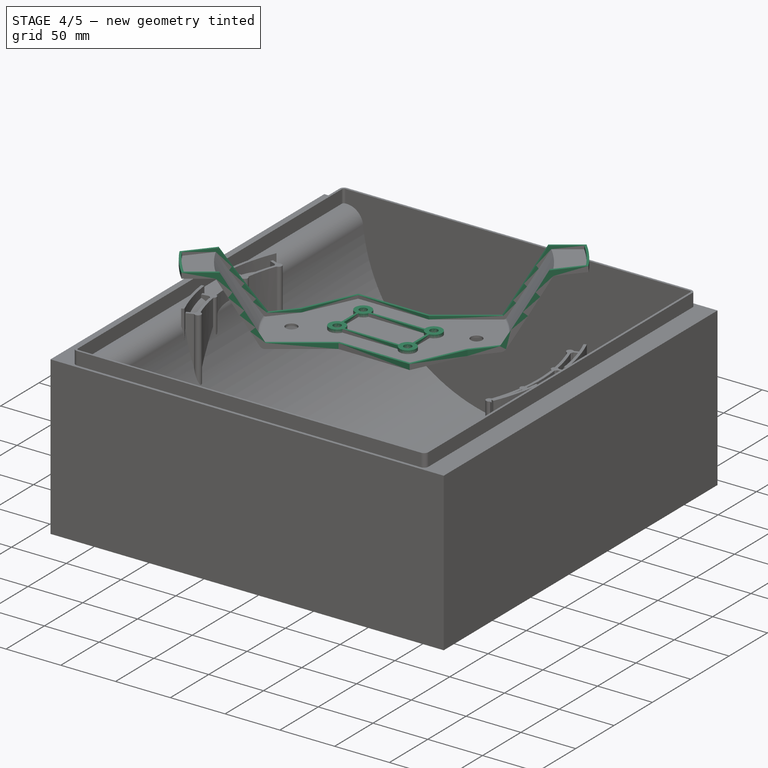
[diagram: stage 4 of 5 — iso view after this stage's code; geometry added in this stage tinted green]
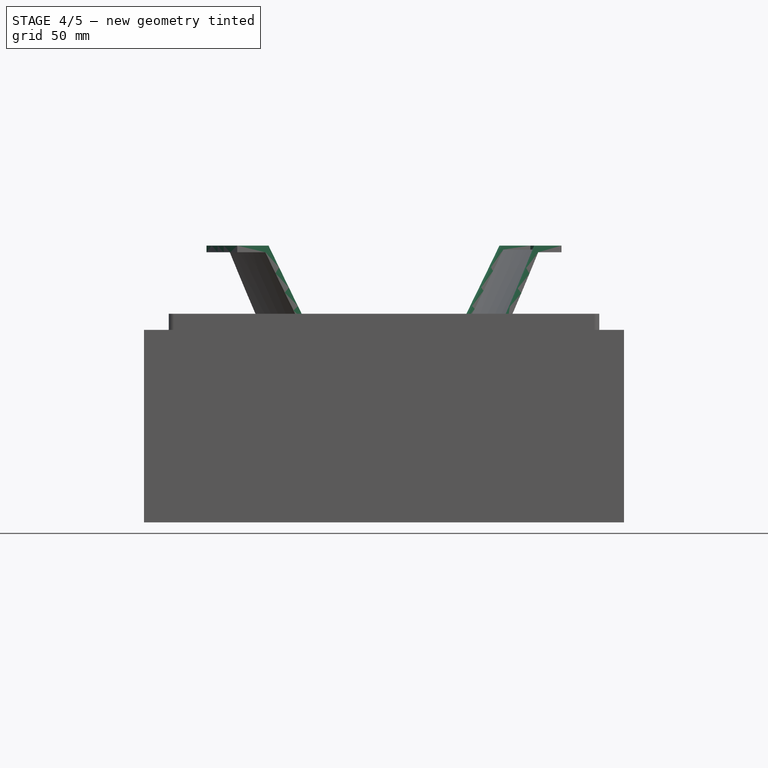
[diagram: stage 4 of 5 — front view after this stage's code; geometry added in this stage tinted green]
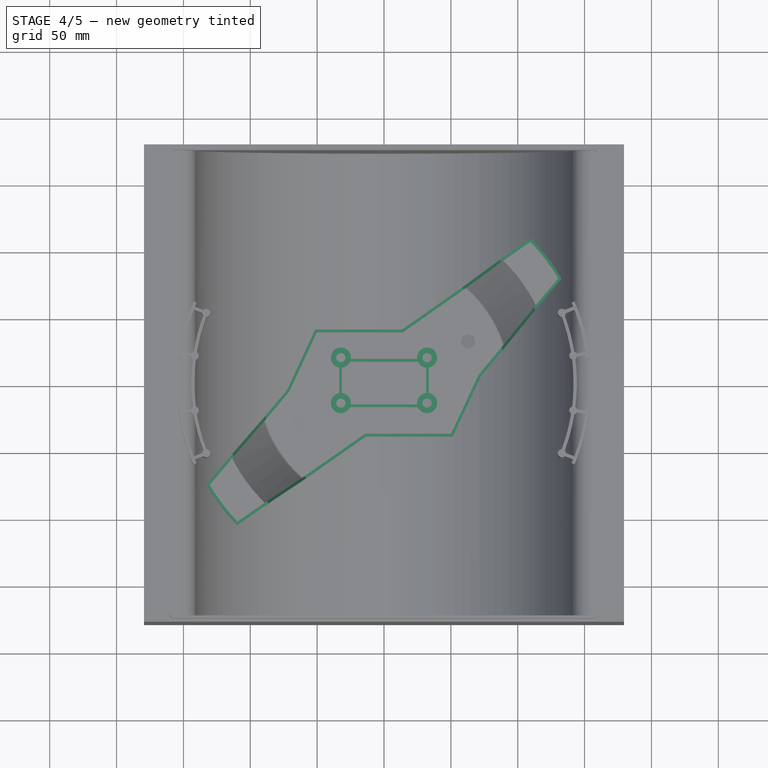
[diagram: stage 4 of 5 — top view after this stage's code; geometry added in this stage tinted green]
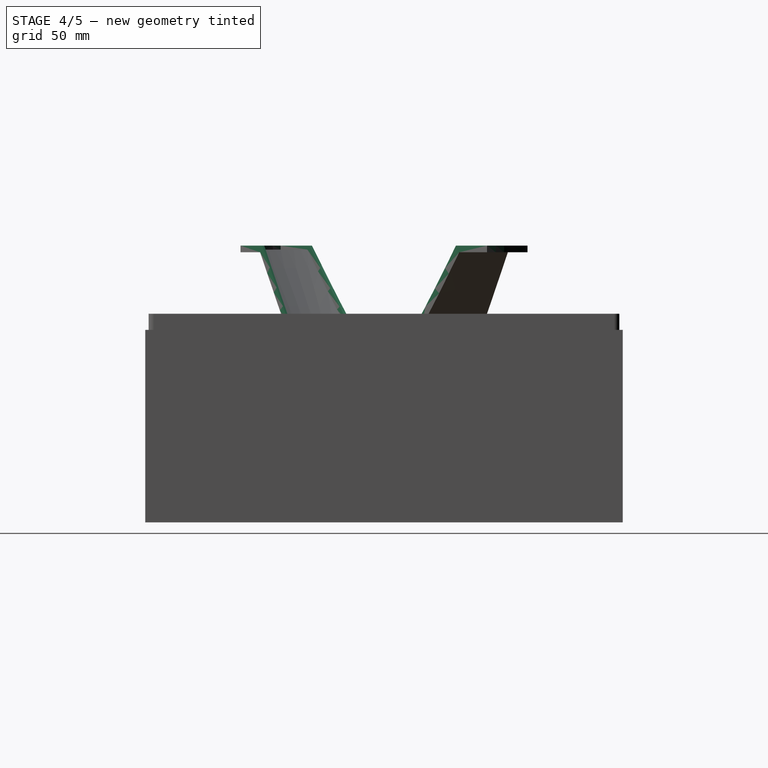
[diagram: stage 4 of 5 — right view after this stage's code; geometry added in this stage tinted green]
FEATURE [Sketcher::SketchObject] Sketch001
  ArcFitTolerance = 1e-06
  AttachmentSupport = -> [XY_Plane]
  ExternalGeometry = -> [MirroredSketch]
  FullyConstrained = true
  MakeInternals = false
  MapMode = 5
  sketch-geometry (8):
    g0: Circle CenterX=-32.25 CenterY=19 CenterZ=0 NormalX=0 NormalY=0 NormalZ=1 AngleXU=0 Radius=3.5
    g1: Circle CenterX=32.25 CenterY=-15 CenterZ=0 NormalX=0 NormalY=0 NormalZ=1 AngleXU=0 Radius=3.5
    g2: Circle CenterX=32.25 CenterY=19 CenterZ=0 NormalX=0 NormalY=0 NormalZ=1 AngleXU=0 Radius=3.5
    g3: Circle CenterX=-32.25 CenterY=-15 CenterZ=0 NormalX=0 NormalY=0 NormalZ=1 AngleXU=0 Radius=3.5
    g4: Circle CenterX=-32.25 CenterY=19 CenterZ=0 NormalX=0 NormalY=0 NormalZ=1 AngleXU=0 Radius=7.5
    g5: Circle CenterX=-32.25 CenterY=-15 CenterZ=0 NormalX=0 NormalY=0 NormalZ=1 AngleXU=0 Radius=7.5
    g6: Circle CenterX=32.25 CenterY=-15 CenterZ=0 NormalX=0 NormalY=0 NormalZ=1 AngleXU=0 Radius=7.5
    g7: Circle CenterX=32.25 CenterY=19 CenterZ=0 NormalX=0 NormalY=0 NormalZ=1 AngleXU=0 Radius=7.5
  constraints (18):
    c: Coincident(g0,g-4)
    c: Coincident(g1,g-3)
    c: Equal(g-4,g0)
    c: Equal(g0,g2)
    c: Equal(g2,g1)
    c: Equal(g1,g3)
    c: Vertical(g2,g1)
    c: Horizontal(g2,g0)
    c: Horizontal(g3,g1)
    c: Vertical(g0,g3)
    c: Diameter(g4) = 15
    c: Coincident(g4,g0)
    c: Coincident(g5,g3)
    c: Coincident(g6,g1)
    c: Coincident(g7,g2)
    c: Equal(g4,g7)
    c: Equal(g7,g6)
    c: Equal(g6,g5)
FEATURE [Sketcher::SketchObject] Sketch002
  ArcFitTolerance = 1e-06
  AttachmentSupport = -> [XY_Plane]
  FullyConstrained = true
  MakeInternals = false
  MapMode = 5
  sketch-geometry (16):
    g0: LineSegment StartX=-33.5 StartY=14 StartZ=0 EndX=-33.5 EndY=-9 EndZ=0
    g1: LineSegment StartX=-33.5 StartY=-9 StartZ=0 EndX=-31.5 EndY=-9 EndZ=0
    g2: LineSegment StartX=-31.5 StartY=-9 StartZ=0 EndX=-31.5 EndY=14 EndZ=0
    g3: LineSegment StartX=-31.5 StartY=14 StartZ=0 EndX=-33.5 EndY=14 EndZ=0
    g4: LineSegment StartX=-26 StartY=18 StartZ=0 EndX=-26 EndY=16 EndZ=0
    g5: LineSegment StartX=-26 StartY=16 StartZ=0 EndX=26 EndY=16 EndZ=0
    g6: LineSegment StartX=26 StartY=16 StartZ=0 EndX=26 EndY=18 EndZ=0
    g7: LineSegment StartX=26 StartY=18 StartZ=0 EndX=-26 EndY=18 EndZ=0
    g8: LineSegment StartX=31.5 StartY=14 StartZ=0 EndX=31.5 EndY=-9 EndZ=0
    g9: LineSegment StartX=31.5 StartY=-9 StartZ=0 EndX=33.5 EndY=-9 EndZ=0
    g10: LineSegment StartX=33.5 StartY=-9 StartZ=0 EndX=33.5 EndY=14 EndZ=0
    g11: LineSegment StartX=33.5 StartY=14 StartZ=0 EndX=31.5 EndY=14 EndZ=0
    g12: LineSegment StartX=-26 StartY=-16 StartZ=0 EndX=-26 EndY=-18 EndZ=0
    g13: LineSegment StartX=-26 StartY=-18 StartZ=0 EndX=26 EndY=-18 EndZ=0
    g14: LineSegment StartX=26 StartY=-18 StartZ=0 EndX=26 EndY=-16 EndZ=0
    g15: LineSegment StartX=26 StartY=-16 StartZ=0 EndX=-26 EndY=-16 EndZ=0
  constraints (45):
    c: Coincident(g0,g1)
    c: Coincident(g1,g2)
    c: Coincident(g2,g3)
    c: Coincident(g3,g0)
    c: Vertical(g0)
    c: Vertical(g2)
    c: Horizontal(g3)
    c: Coincident(g4,g5)
    c: Coincident(g5,g6)
    c: Coincident(g6,g7)
    c: Coincident(g7,g4)
    c: Vertical(g4)
    c: Vertical(g6)
    c: Horizontal(g5)
    c: Horizontal(g7)
    c: Coincident(g8,g9)
    c: Coincident(g9,g10)
    c: Coincident(g10,g11)
    c: Coincident(g11,g8)
    c: Vertical(g8)
    c: Vertical(g10)
    c: Horizontal(g9)
    c: Horizontal(g11)
    c: Coincident(g12,g13)
    c: Coincident(g13,g14)
    c: Coincident(g14,g15)
    c: Coincident(g15,g12)
    c: Vertical(g12)
    c: Horizontal(g13)
    c: Equal(g1,g12)
    c: Equal(g12,g9)
    c: Equal(g9,g6)
    c: DistanceY(g6,g6) = 2
    c: DistanceY(g12,g4) = 36
    c: DistanceX(g0,g9) = 67
    c: Vertical(g12,g4)
    c: Horizontal(g2,g8)
    c: Horizontal(g1,g8)
    c: Symmetric(g12,g14,g-2)
    c: Symmetric(g0,g9,g-2)
    c: Symmetric(g13,g6,g-1)
    c: DistanceY(g8) = -9
    c: DistanceY(g10,g10) = 23
    c: Vertical(g14)
    c: DistanceX(g14) = 26
FEATURE [Sketcher::SketchObject] Sketch004
  ArcFitTolerance = 1e-06
  AttachmentSupport = -> [XY_Plane]
  FullyConstrained = true
  MakeInternals = false
  MapMode = 5
  sketch-geometry (4):
    g0: Circle CenterX=-62.7675 CenterY=-30.9877 CenterZ=0 NormalX=0 NormalY=0 NormalZ=1 AngleXU=0 Radius=7.25
    g1: Circle CenterX=-62.7675 CenterY=-30.9877 CenterZ=0 NormalX=0 NormalY=0 NormalZ=1 AngleXU=0 Radius=5.25
    g2: Circle CenterX=62.7675 CenterY=30.9877 CenterZ=0 NormalX=0 NormalY=0 NormalZ=1 AngleXU=0 Radius=7.25
    g3: Circle CenterX=62.7675 CenterY=30.9877 CenterZ=0 NormalX=0 NormalY=0 NormalZ=1 AngleXU=0 Radius=5.25
  constraints (8):
    c: Diameter(g0) = 14.5
    c: Coincident(g0,g-3)
    c: Coincident(g1,g0)
    c: Equal(g-3,g1)
    c: Coincident(g2,g-4)
    c: Coincident(g3,g2)
    c: Equal(g3,g-4)
    c: Equal(g2,g0)
FEATURE [Sketcher::SketchObject] Sketch006
  ArcFitTolerance = 1e-06
  AttachmentSupport = -> [XY_Plane]
  FullyConstrained = true
  MakeInternals = false
  MapMode = 5
  sketch-geometry (26):
    g0: LineSegment StartX=-72.5556 StartY=-5.31539 StartZ=0 EndX=-132.756 EndY=-77.0593 EndZ=0
    g1: LineSegment StartX=-109.736 StartY=-107.332 StartZ=0 EndX=-13.5753 EndY=-40 EndZ=0
    g2: LineSegment StartX=-13.5753 StartY=-40 StartZ=0 EndX=51.4247 EndY=-40 EndZ=0
    g3: LineSegment StartX=51.4247 StartY=-40 StartZ=0 EndX=72.5556 EndY=5.31539 EndZ=0
    g4: LineSegment StartX=72.5556 StartY=5.31539 StartZ=0 EndX=132.756 EndY=77.0593 EndZ=0
    g5: ArcOfCircle CenterX=-6.36e-14 CenterY=7.17e-14 CenterZ=0 NormalX=0 NormalY=0 NormalZ=1 AngleXU=0 Radius=153.5 StartAngle=0.525927 EndAngle=0.774326
    g6: LineSegment StartX=109.736 StartY=107.332 StartZ=0 EndX=13.5753 EndY=40 EndZ=0
    g7: LineSegment StartX=13.5753 StartY=40 StartZ=0 EndX=-51.4247 EndY=40 EndZ=0
    g8: LineSegment StartX=-51.4247 StartY=40 StartZ=0 EndX=-72.5556 EndY=-5.31539 EndZ=0
    g9: ArcOfCircle CenterX=-6.17e-14 CenterY=1.15e-13 CenterZ=0 NormalX=0 NormalY=0 NormalZ=1 AngleXU=0 Radius=153.5 StartAngle=3.66752 EndAngle=3.91592
    g10: LineSegment StartX=-130.317 StartY=-77.2641 StartZ=0 EndX=-70.8543 EndY=-6.39926 EndZ=0
    g11: LineSegment StartX=-70.8543 StartY=-6.39926 StartZ=0 EndX=-50.1506 EndY=38 EndZ=0
    g12: LineSegment StartX=-50.1506 StartY=38 StartZ=0 EndX=14.2059 EndY=38 EndZ=0
    g13: LineSegment StartX=14.2059 StartY=38 StartZ=0 EndX=109.485 EndY=104.715 EndZ=0
    g14: LineSegment StartX=130.317 StartY=77.2641 StartZ=0 EndX=70.8543 EndY=6.39926 EndZ=0
    g15: LineSegment StartX=70.8543 StartY=6.39926 StartZ=0 EndX=50.1506 EndY=-38 EndZ=0
    g16: LineSegment StartX=50.1506 StartY=-38 StartZ=0 EndX=-14.2059 EndY=-38 EndZ=0
    g17: LineSegment StartX=-14.2059 StartY=-38 StartZ=0 EndX=-109.485 EndY=-104.715 EndZ=0
    g18: ArcOfCircle CenterX=-6.36e-14 CenterY=7.17e-14 CenterZ=0 NormalX=0 NormalY=0 NormalZ=1 AngleXU=0 Radius=151.5 StartAngle=3.67677 EndAngle=3.90473
    g19: LineSegment [constr] StartX=-72.5556 StartY=-5.31539 StartZ=0 EndX=-71.0235 EndY=-6.60096 EndZ=0
    g20: LineSegment [constr] StartX=-109.485 StartY=-104.715 StartZ=0 EndX=-108.338 EndY=-106.353 EndZ=0
    g21: ArcOfCircle CenterX=-6.17e-14 CenterY=1.15e-13 CenterZ=0 NormalX=0 NormalY=0 NormalZ=1 AngleXU=0 Radius=151.5 StartAngle=0.535178 EndAngle=0.763134
    g22: LineSegment [constr] StartX=-50.1506 StartY=38 StartZ=0 EndX=-51.9632 EndY=38.8452 EndZ=0
    g23: LineSegment [constr] StartX=13.5753 StartY=40 StartZ=0 EndX=14.7224 EndY=38.3617 EndZ=0
    g24: LineSegment [constr] StartX=130.317 StartY=77.2641 StartZ=0 EndX=131.849 EndY=75.9785 EndZ=0
    g25: LineSegment [constr] StartX=50.1506 StartY=-38 StartZ=0 EndX=51.9632 EndY=-38.8452 EndZ=0
  constraints (70):
    c: Coincident(g-4,g0)
    c: Coincident(g0,g-8)
    c: Coincident(g-8,g1)
    c: Coincident(g1,g-5)
    c: Coincident(g1,g2)
    c: Coincident(g2,g-6)
    c: Coincident(g2,g3)
    c: Coincident(g3,g-6)
    c: Coincident(g3,g4)
    c: Coincident(g4,g-7)
    c: Coincident(g5,g-7)
    c: Coincident(g5,g6)
    c: Coincident(g6,g-3)
    c: Coincident(g6,g7)
    c: Coincident(g7,g-4)
    c: Coincident(g7,g8)
    c: Coincident(g8,g0)
    c: Equal(g-7,g5)
    c: Coincident(g4,g5)
    c: Coincident(g9,g0)
    c: Coincident(g9,g1)
    c: Coincident(g10,g11)
    c: Coincident(g11,g12)
    c: Horizontal(g12)
    c: Coincident(g12,g13)
    c: Coincident(g14,g15)
    c: Coincident(g15,g16)
    c: Horizontal(g16)
    c: Coincident(g16,g17)
    c: Coincident(g18,g5)
    c: Coincident(g18,g10)
    c: Coincident(g18,g17)
    c: Coincident(g19,g0)
    c: PointOnObject(g19,g10)
    c: Perpendicular(g0,g19)
    c: Distance(g19,g19) = 2
    c: Parallel(g10,g0)
    c: Parallel(g17,g1)
    c: Parallel(g15,g3)
    c: DistanceY(g2,g15) = 2
    c: Coincident(g20,g17)
    c: PointOnObject(g20,g1)
    c: Perpendicular(g20,g17)
    c: Distance(g20,g20) = 2
    c: DistanceY(g11,g7) = 2
    c: Parallel(g14,g4)
    c: Parallel(g6,g13)
    c: Coincident(g21,g9)
    c: Coincident(g21,g13)
    c: Coincident(g21,g14)
    c: Radius(g21) = 151.5
    c: Radius(g18) = 151.5
    c: Equal(g9,g-8)
    c: Parallel(g11,g8)
    c: Coincident(g22,g11)
    c: PointOnObject(g22,g8)
    c: Perpendicular(g11,g22)
    c: Distance(g22,g22) = 2
    c: Coincident(g23,g6)
    c: PointOnObject(g23,g13)
    c: Perpendicular(g13,g23)
    c: Distance(g23,g23) = 2
    c: Distance(g24) = 2
    c: Coincident(g24,g14)
    c: Perpendicular(g14,g24)
    c: PointOnObject(g24,g4)
    c: Distance(g25) = 2
    c: Coincident(g25,g15)
    c: Perpendicular(g15,g25)
    c: PointOnObject(g25,g3)
FEATURE [PartDesign::Pad] Pad003  label="pad_ridge_along_sides"
  BaseFeature = -> Pocket
  Direction = (0,0,1)
  Length = 65
  Length2 = 10
  Placement = pos=(0,0,0) rot=(1,0,0;1.5708rad)
  Profile = -> Sketch006
  ReferenceAxis = -> Sketch006 [N_Axis]
  Refine = true
  Suppressed = false
  Type = 0
FEATURE [Sketcher::SketchObject] Sketch007
  ArcFitTolerance = 1e-06
  AttachmentSupport = -> [XZ_Plane]
  ExternalGeometry = -> [Sketch]
  FullyConstrained = true
  MakeInternals = false
  MapMode = 5
  Placement = pos=(0,0,0) rot=(1,0,0;1.5708rad)
  sketch-geometry (16):
    g0: LineSegment StartX=153.5 StartY=58 StartZ=0 EndX=128.296 EndY=58 EndZ=0
    g1: LineSegment StartX=153.5 StartY=63 StartZ=0 EndX=125.409 EndY=63 EndZ=0
    g2: LineSegment StartX=125.409 StartY=63 StartZ=0 EndX=91.9226 EndY=5 EndZ=0
    g3: LineSegment StartX=91.9226 StartY=5 StartZ=0 EndX=0 EndY=5 EndZ=0
    g4: LineSegment StartX=0 StartY=0 StartZ=0 EndX=92.5 EndY=5.2611e-12 EndZ=0
    g5: ArcOfCircle CenterX=92.5 CenterY=4 CenterZ=0 NormalX=0 NormalY=0 NormalZ=1 AngleXU=0 Radius=4 StartAngle=4.71239 EndAngle=5.75959
    g6: LineSegment StartX=95.9641 StartY=2 StartZ=0 EndX=128.296 EndY=58 EndZ=0
    g7: LineSegment [constr] StartX=128.296 StartY=58 StartZ=0 EndX=123.966 EndY=60.5 EndZ=0
    g8: LineSegment StartX=153.5 StartY=63 StartZ=0 EndX=165.5 EndY=63 EndZ=0
    g9: LineSegment StartX=153.5 StartY=58 StartZ=0 EndX=165.5 EndY=58 EndZ=0
    g10: LineSegment StartX=0 StartY=5 StartZ=0 EndX=0 EndY=105 EndZ=0
    g11: LineSegment StartX=0 StartY=105 StartZ=0 EndX=165.5 EndY=105 EndZ=0
    g12: LineSegment StartX=165.5 StartY=63 StartZ=0 EndX=165.5 EndY=105 EndZ=0
    g13: LineSegment StartX=165.5 StartY=58 StartZ=0 EndX=165.5 EndY=-10 EndZ=0
    g14: LineSegment StartX=165.5 StartY=-10 StartZ=0 EndX=0 EndY=-10 EndZ=0
    g15: LineSegment StartX=0 StartY=-10 StartZ=0 EndX=0 EndY=0 EndZ=0
  constraints (43):
    c: Coincident(g0,g-3)
    c: Horizontal(g1)
    c: Coincident(g1,g2)
    c: Coincident(g2,g3)
    c: PointOnObject(g3,g-2)
    c: Horizontal(g3)
    c: Coincident(g4,g-4)
    c: Tangent(g4,g5) = -1.5708
    c: Coincident(g0,g6)
    c: Coincident(g5,g-4)
    c: Coincident(g6,g5)
    c: DistanceY(g0,g1) = 5
    c: Distance(g7) = 5
    c: Coincident(g7,g0)
    c: Perpendicular(g6,g7)
    c: PointOnObject(g7,g2)
    c: Parallel(g6,g2)
    c: DistanceY(g4,g3) = 5
    c: Coincident(g4,g-1)
    c: Vertical(g1,g0)
    c: Distance(g8) = 12
    c: Horizontal(g8)
    c: Coincident(g8,g1)
    c: Distance(g9) = 12
    c: Horizontal(g9)
    c: Coincident(g9,g0)
    c: Distance(g10) = 100
    c: Coincident(g10,g3)
    c: PointOnObject(g10,g-2)
    c: Coincident(g11,g10)
    c: Horizontal(g11)
    c: Coincident(g12,g8)
    c: Coincident(g12,g11)
    c: Vertical(g12)
    c: Coincident(g0,g-5)
    c: Coincident(g9,g13)
    c: Vertical(g13)
    c: Coincident(g13,g14)
    c: Horizontal(g14)
    c: Coincident(g14,g15)
    c: Coincident(g15,g4)
    c: Vertical(g15)
    c: DistanceY(g15,g15) = 10
FEATURE [PartDesign::Groove] Groove  label="cutout_ridge_along_sides"
  Angle = 360
  Angle2 = 60
  Axis = (0,2e-16,1)
  Base = (0,0,0)
  BaseFeature = -> Pad003
  Placement = pos=(0,0,0) rot=(1,0,0;1.5708rad)
  Profile = -> Sketch007
  ReferenceAxis = -> Sketch007 [V_Axis]
  Refine = true
  Suppressed = false
  Type = 0
FEATURE [PartDesign::Pad] Pad  label="tower_mounting_hole"
  BaseFeature = -> Groove
  Direction = (0,0,1)
  Length = 5
  Length2 = 10
  Placement = pos=(0,0,0) rot=(1,0,0;1.5708rad)
  Profile = -> Sketch001
  ReferenceAxis = -> Sketch001 [N_Axis]
  Refine = true
  Suppressed = false
  Type = 0
FEATURE [PartDesign::Pad] Pad001  label="ridges_along_mounting_holes"
  BaseFeature = -> Pad
  Direction = (0,0,1)
  Length = 5
  Length2 = 10
  Placement = pos=(0,0,0) rot=(1,0,0;1.5708rad)
  Profile = -> Sketch002
  ReferenceAxis = -> Sketch002 [N_Axis]
  Refine = true
  Suppressed = false
  Type = 0
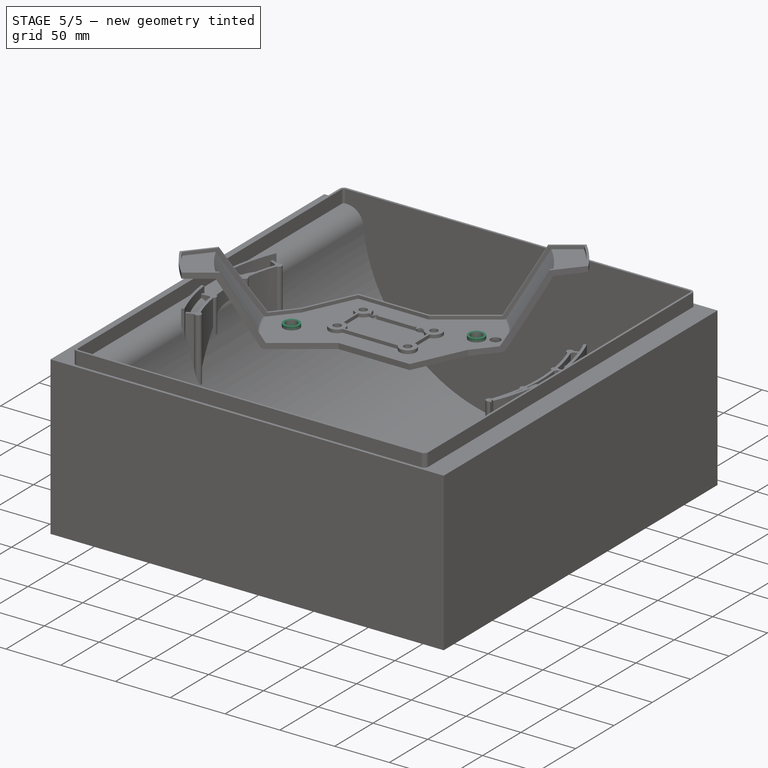
[diagram: stage 5 of 5 — iso view after this stage's code; geometry added in this stage tinted green]
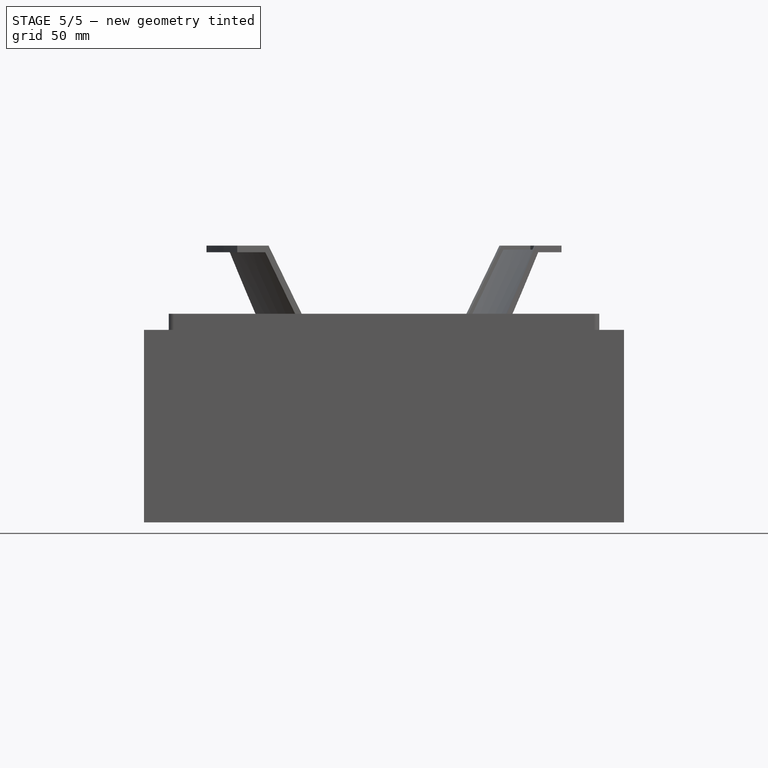
[diagram: stage 5 of 5 — front view after this stage's code; geometry added in this stage tinted green]
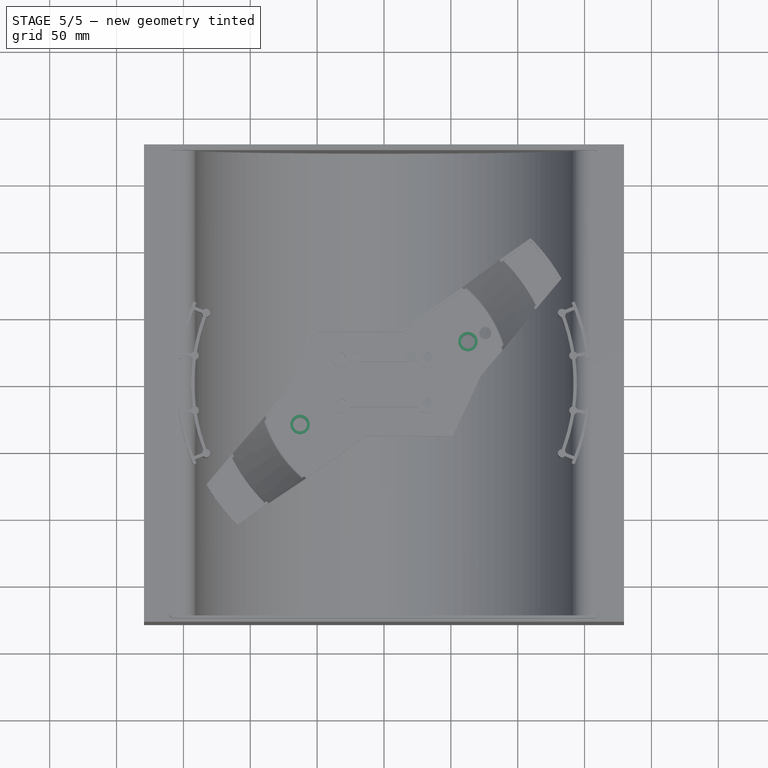
[diagram: stage 5 of 5 — top view after this stage's code; geometry added in this stage tinted green]
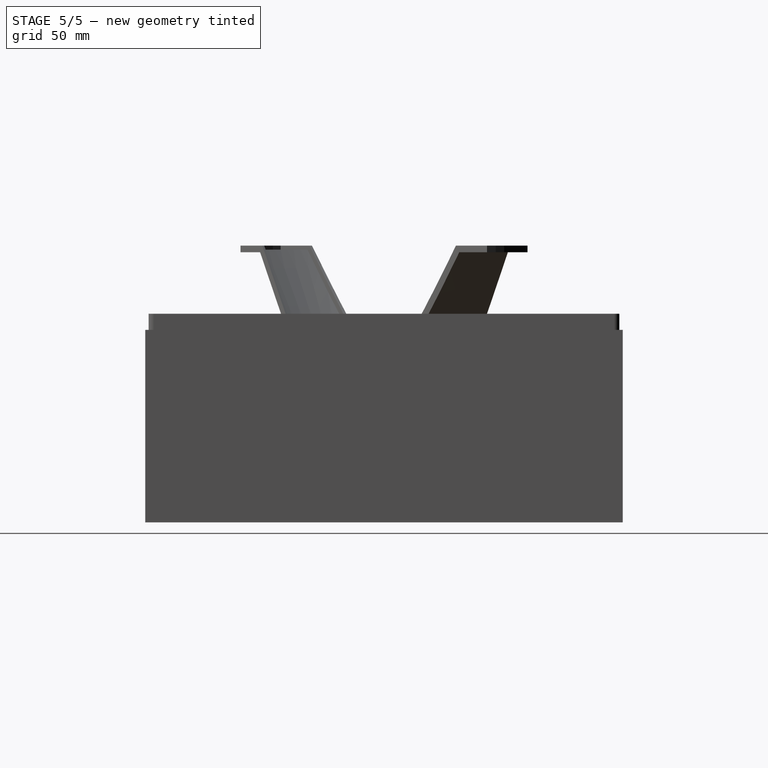
[diagram: stage 5 of 5 — right view after this stage's code; geometry added in this stage tinted green]
FEATURE [Sketcher::SketchObject] Sketch003
  ArcFitTolerance = 1e-06
  AttachmentSupport = -> [XY_Plane]
  ExternalGeometry = -> [Pad001]
  FullyConstrained = true
  MakeInternals = false
  MapMode = 5
  sketch-geometry (2):
    g0: Circle CenterX=-20.3 CenterY=19 CenterZ=0 NormalX=0 NormalY=0 NormalZ=1 AngleXU=0 Radius=3.75
    g1: Circle CenterX=20.3 CenterY=19 CenterZ=0 NormalX=0 NormalY=0 NormalZ=1 AngleXU=0 Radius=3.75
  constraints (5):
    c: Diameter(g0) = 7.5
    c: Equal(g1,g0)
    c: Symmetric(g1,g0,g-2)
    c: DistanceX(g1) = 20.3
    c: DistanceY(g1) = 19
FEATURE [PartDesign::Pocket] Pocket001  label="Extra_holes_in_square"
  BaseFeature = -> Pad001
  Direction = (0,0,-1)
  Length = 5
  Length2 = 5
  Placement = pos=(0,0,0) rot=(1,0,0;1.5708rad)
  Profile = -> Sketch003
  ReferenceAxis = -> Sketch003 [N_Axis]
  Refine = true
  Reversed = true
  Suppressed = false
  Type = 0
FEATURE [Sketcher::SketchObject] Sketch008
  ArcFitTolerance = 1e-06
  AttachmentSupport = -> [XY_Plane]
  FullyConstrained = true
  MakeInternals = false
  MapMode = 5
  sketch-geometry (2):
    g0: Circle CenterX=75.7528 CenterY=37.2857 CenterZ=0 NormalX=0 NormalY=0 NormalZ=1 AngleXU=0 Radius=4.5
    g1: LineSegment [constr] StartX=75.7528 StartY=37.2857 StartZ=0 EndX=32.25 EndY=17 EndZ=0
  constraints (5):
    c: Distance(g1) = 48
    c: Coincident(g1,g0)
    c: Coincident(g1,g-3)
    c: Angle(g-1,g1) = 0.436332
    c: Diameter(g0) = 9
FEATURE [PartDesign::Pocket] Pocket002
  BaseFeature = -> Pocket001
  Direction = (0,0,-1)
  Length = 5
  Length2 = 5
  Placement = pos=(0,0,0) rot=(1,0,0;1.5708rad)
  Profile = -> Sketch008
  ReferenceAxis = -> Sketch008 [N_Axis]
  Refine = true
  Reversed = true
  Suppressed = false
  Type = 0
FEATURE [PartDesign::Pad] Pad004  label="Mounting_holes_bracket"
  BaseFeature = -> Pocket002
  Direction = (0,0,1)
  Length = 5
  Length2 = 8
  Placement = pos=(0,0,0) rot=(1,0,0;1.5708rad)
  Profile = -> Sketch004
  ReferenceAxis = -> Sketch004 [N_Axis]
  Refine = true
  Suppressed = false
  Type = 4
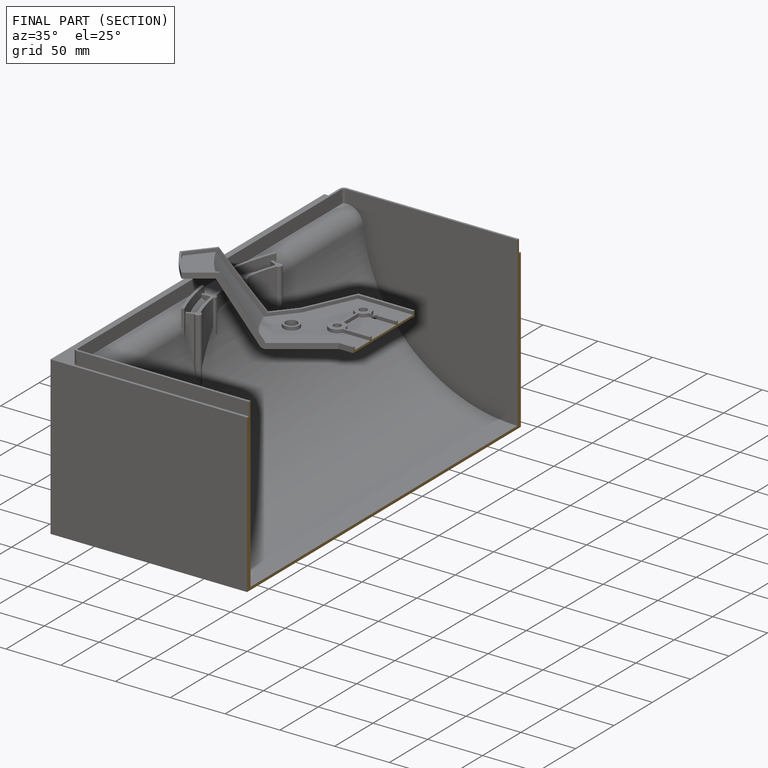
[diagram: finished part — half-section view (interior)]
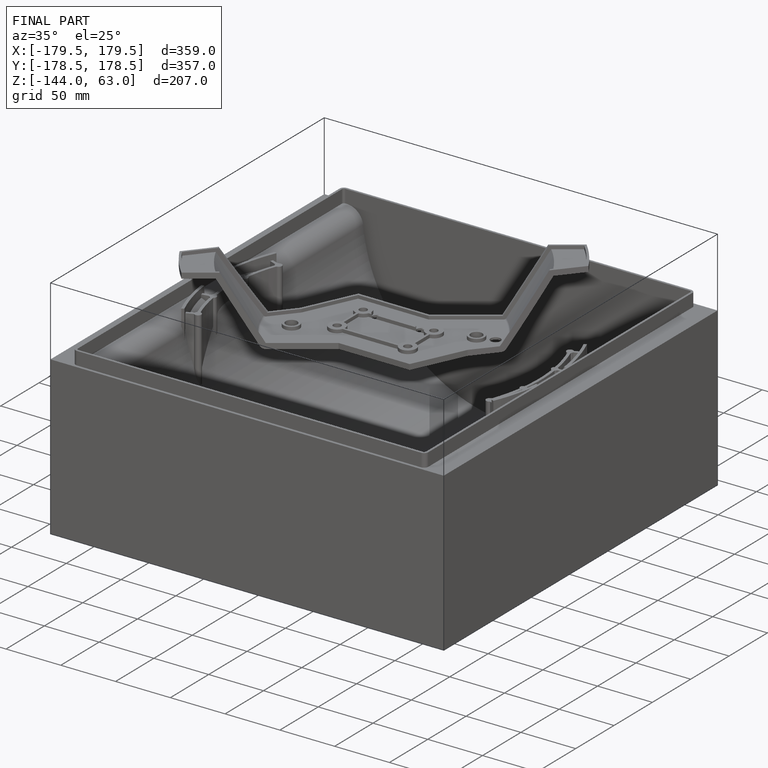
[diagram: finished part — iso view with bounding-box wireframe]
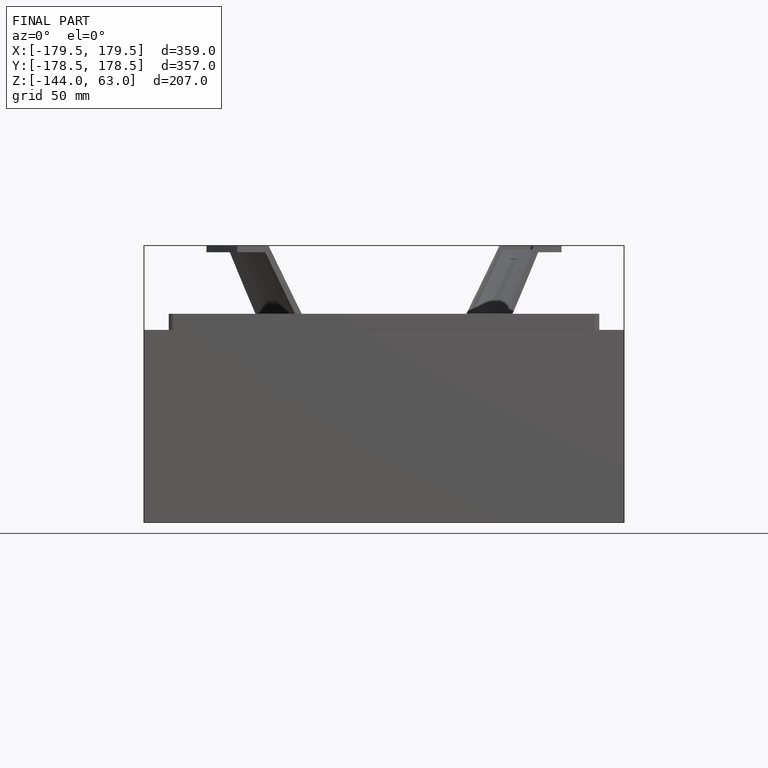
[diagram: finished part — front view with bounding-box wireframe]
